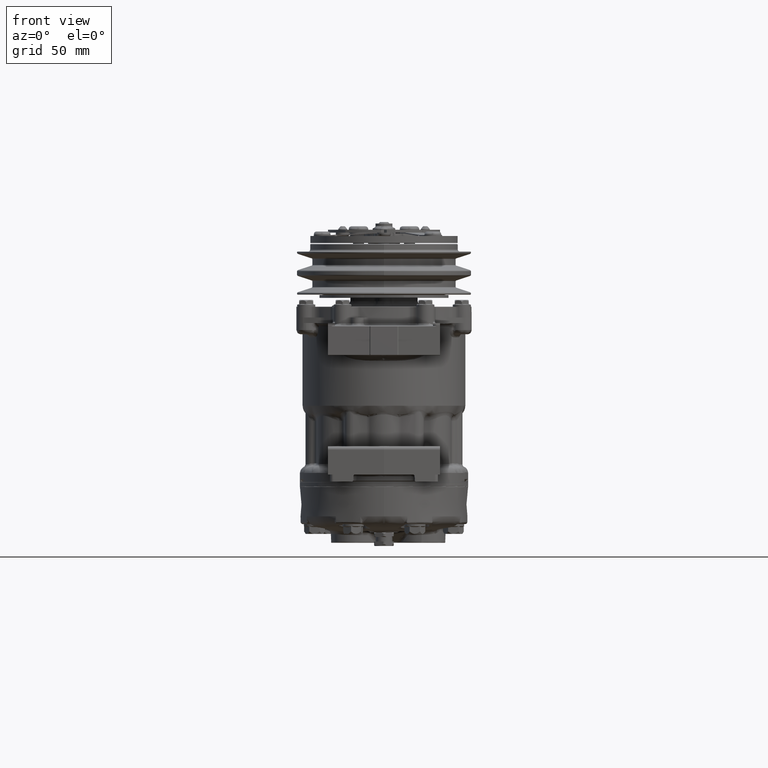
[diagram: clean part render]
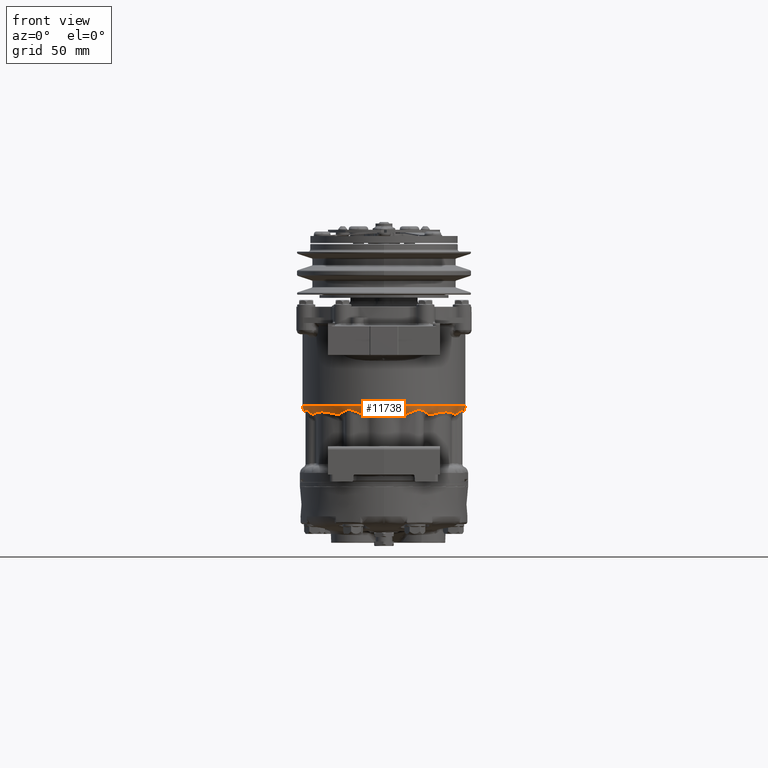
[diagram: same view with one face highlighted and labeled with its STEP entity id]
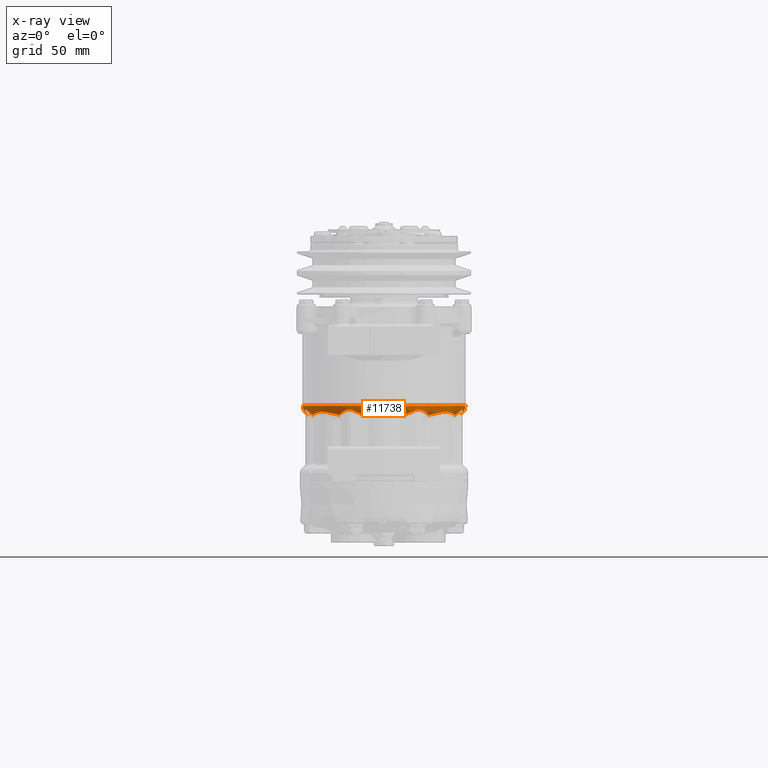
[diagram: x-ray of the same camera — body ghosted, the highlighted face saturated]
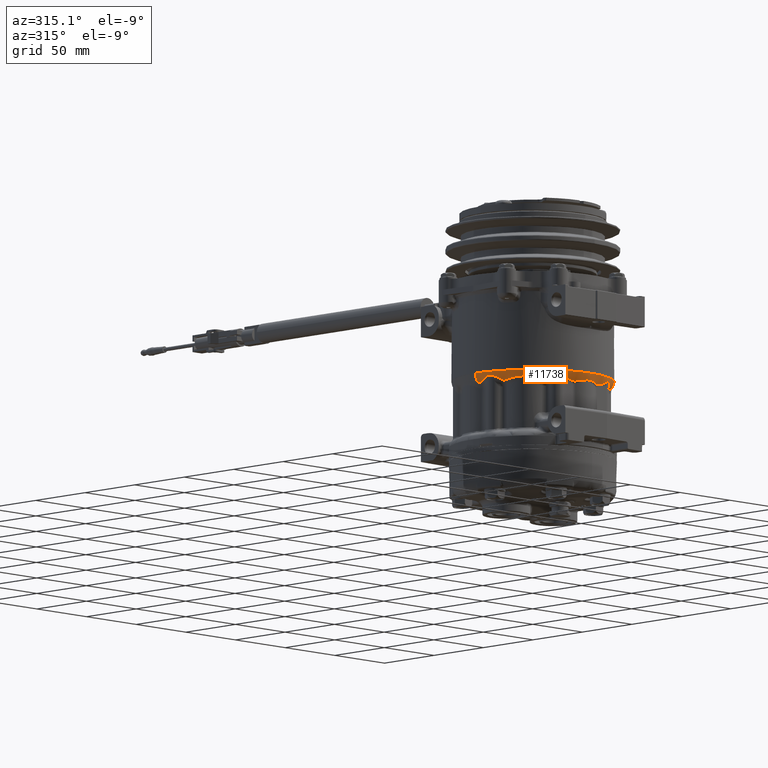
[diagram: same view with one face highlighted and labeled with its STEP entity id]
A machine part, front view. The second image highlights one B-rep face of the part: STEP entity #11738.
The next image is the same camera in x-ray: the body ghosted, the highlighted face saturated — about 0% of this face is hidden behind the body in this view.
A second angle (auxiliary view) of the same face is appended — the face is thin or edge-on in the first view.
In plain terms, the highlighted face is a freeform B-spline surface patch.
Its self-contained STEP definition (entity closure, byte-faithful):
#2284 = CARTESIAN_POINT ( 'NONE',  ( -54.28339097298989200, -0.0001150193945226307700, -9.587478286473057700 ) ) ;
#2285 = CARTESIAN_POINT ( 'NONE',  ( -56.03406201889804800, -0.0001151383021147367500, -8.038017556103042700 ) ) ;
#2286 = CARTESIAN_POINT ( 'NONE',  ( -56.98128687608920000, -0.0001151383021147367300, -5.912628057765234100 ) ) ;
#2287 = CARTESIAN_POINT ( 'NONE',  ( -56.98128688112369400, -0.0001151105602087421100, -3.596842083006215800 ) ) ;
#2288 =( BOUNDED_CURVE ( )  B_SPLINE_CURVE ( 3, ( #2287, #2286, #2285, #2284 ),
 .UNSPECIFIED., .F., .T. ) 
 B_SPLINE_CURVE_WITH_KNOTS ( ( 4, 4 ),
 ( 0.0000000000000000000, 1.000000000000000000 ),
 .UNSPECIFIED. ) 
 CURVE ( )  GEOMETRIC_REPRESENTATION_ITEM ( )  RATIONAL_B_SPLINE_CURVE ( ( 1.000000000000000000, 0.9331068306218579500, 0.9242890298648595000, 0.9735465977290037600 ) ) 
 REPRESENTATION_ITEM ( '' )  );
#2345 = CARTESIAN_POINT ( 'NONE',  ( -56.98128688112369400, -0.0001151105602087421100, -3.596842083006215800 ) ) ;
#2702 = CARTESIAN_POINT ( 'NONE',  ( 59.01871312894530100, -0.0001151385370240509700, -3.596841984690874100 ) ) ;
#2769 =( BOUNDED_CURVE ( )  B_SPLINE_CURVE ( 3, ( #2804, #2803, #2802, #2801 ),
 .UNSPECIFIED., .F., .F. ) 
 B_SPLINE_CURVE_WITH_KNOTS ( ( 4, 4 ),
 ( 0.0000000000000000000, 1.000000000000000000 ),
 .UNSPECIFIED. ) 
 CURVE ( )  GEOMETRIC_REPRESENTATION_ITEM ( )  RATIONAL_B_SPLINE_CURVE ( ( 0.9735465991395939600, 0.9242890296712321700, 0.9331068299499336600, 0.9999999999756997700 ) ) 
 REPRESENTATION_ITEM ( '' )  );
#2792 = CARTESIAN_POINT ( 'NONE',  ( 55.53550902791082700, -0.0001151383021147367500, -10.19976215368187600 ) ) ;
#2797 =( BOUNDED_SURFACE ( )  B_SPLINE_SURFACE ( 3, 3, ( 
 ( #2792, #2830, #2829, #2828 ),
 ( #2827, #2826, #2825, #2824 ),
 ( #2823, #2822, #2821, #2820 ),
 ( #2819, #2818, #2817, #2816 ) ),
 .UNSPECIFIED., .F., .F., .T. ) 
 B_SPLINE_SURFACE_WITH_KNOTS ( ( 4, 4 ),
 ( 4, 4 ),
 ( 0.0002379373980000020600, 1.000000000000000000 ),
 ( 0.0000000000000000000, 1.000000000000000000 ),
 .UNSPECIFIED. ) 
 GEOMETRIC_REPRESENTATION_ITEM ( )  RATIONAL_B_SPLINE_SURFACE ( (
 ( 0.9999450139925221100, 0.3333150046641740700, 0.3333150046641740700, 0.9999450139925221100),
 ( 0.9229501945082390100, 0.3076500648360800400, 0.3076500648360800400, 0.9229501945082390100),
 ( 0.9229685231773979700, 0.3076561743924671200, 0.3076561743924671200, 0.9229685231773979700),
 ( 1.000000000000000000, 0.3333333333333330400, 0.3333333333333330400, 1.000000000000000000) ) ) 
 REPRESENTATION_ITEM ( '' )  SURFACE ( )  );
#2799 = FACE_OUTER_BOUND ( 'NONE', #11733, .T. ) ;
#2801 = CARTESIAN_POINT ( 'NONE',  ( 59.01871312894530100, -0.0001151385370240509700, -3.596841984690874100 ) ) ;
#2802 = CARTESIAN_POINT ( 'NONE',  ( 59.01871312391082100, -0.0001151397115302114300, -5.912628081853018400 ) ) ;
#2803 = CARTESIAN_POINT ( 'NONE',  ( 58.07148824815713100, -0.0001151396885123941900, -8.038017597753702500 ) ) ;
#2804 = CARTESIAN_POINT ( 'NONE',  ( 56.32081658608140600, -0.0001151392244602700300, -9.587477666880804600 ) ) ;
#2816 = CARTESIAN_POINT ( 'NONE',  ( -56.98128687608920000, -0.0001151383021147367500, -3.596841984681874200 ) ) ;
#2817 = CARTESIAN_POINT ( 'NONE',  ( -56.98128687608920700, -116.0001151383021500, -3.596841984681877300 ) ) ;
#2818 = CARTESIAN_POINT ( 'NONE',  ( 59.01871312391080700, -116.0001151383021500, -3.596841984681877300 ) ) ;
#2819 = CARTESIAN_POINT ( 'NONE',  ( 59.01871312391080700, -0.0001151383021147367500, -3.596841984681874200 ) ) ;
#2820 = CARTESIAN_POINT ( 'NONE',  ( -56.98128687608920700, -0.0001151383021147367500, -6.292900830681882800 ) ) ;
#2821 = CARTESIAN_POINT ( 'NONE',  ( -56.98128687608920000, -116.0001151383021500, -6.292900830681881900 ) ) ;
#2822 = CARTESIAN_POINT ( 'NONE',  ( 59.01871312391080700, -116.0001151383021500, -6.292900830681881900 ) ) ;
#2823 = CARTESIAN_POINT ( 'NONE',  ( 59.01871312391082100, -0.0001151383021147367500, -6.292900830681882800 ) ) ;
#2824 = CARTESIAN_POINT ( 'NONE',  ( -55.72335963808920700, -0.0001151383021147367500, -8.677538480681876700 ) ) ;
#2825 = CARTESIAN_POINT ( 'NONE',  ( -55.72335963808921400, -113.4842606613021300, -8.677538480681876700 ) ) ;
#2826 = CARTESIAN_POINT ( 'NONE',  ( 57.76078588591082100, -113.4842606613021300, -8.677538480681876700 ) ) ;
#2827 = CARTESIAN_POINT ( 'NONE',  ( 57.76078588591081300, -0.0001151383021147367500, -8.677538480681876700 ) ) ;
#2828 = CARTESIAN_POINT ( 'NONE',  ( -53.49808278008922000, -0.0001151383021147367500, -10.19976215368187600 ) ) ;
#2829 = CARTESIAN_POINT ( 'NONE',  ( -53.49808278008920600, -109.0337069463021200, -10.19976215368187200 ) ) ;
#2830 = CARTESIAN_POINT ( 'NONE',  ( 55.53550902791082000, -109.0337069463021200, -10.19976215368187200 ) ) ;
#3178 = CARTESIAN_POINT ( 'NONE',  ( -56.98128688112369400, -0.0001151105602087421100, -3.596842083006215800 ) ) ;
#3179 = CARTESIAN_POINT ( 'NONE',  ( -56.98128687608923600, -116.0001151383022100, -3.596841984681883100 ) ) ;
#3180 = CARTESIAN_POINT ( 'NONE',  ( 59.01871312391080700, -116.0001151383022100, -3.596841984681883100 ) ) ;
#3181 = CARTESIAN_POINT ( 'NONE',  ( 59.01871312894530100, -0.0001151385370240509700, -3.596841984690874100 ) ) ;
#3182 =( BOUNDED_CURVE ( )  B_SPLINE_CURVE ( 3, ( #3181, #3180, #3179, #3178 ),
 .UNSPECIFIED., .F., .T. ) 
 B_SPLINE_CURVE_WITH_KNOTS ( ( 4, 4 ),
 ( 0.0000000000000000000, 1.000000000000000000 ),
 .UNSPECIFIED. ) 
 CURVE ( )  GEOMETRIC_REPRESENTATION_ITEM ( )  RATIONAL_B_SPLINE_CURVE ( ( 1.000000000000000000, 0.3333333333333328700, 0.3333333333333328700, 1.000000000000000000 ) ) 
 REPRESENTATION_ITEM ( '' )  );
#4750 = VERTEX_POINT ( 'NONE', #57488 ) ;
#10617 = VERTEX_POINT ( 'NONE', #63444 ) ;
#11511 = EDGE_CURVE ( 'NONE', #11536, #33569, #2288, .T. ) ;
#11536 = VERTEX_POINT ( 'NONE', #2345 ) ;
#11686 = ORIENTED_EDGE ( 'NONE', *, *, #30388, .T. ) ;
#11702 = VERTEX_POINT ( 'NONE', #2702 ) ;
#11725 = EDGE_CURVE ( 'NONE', #33500, #11702, #2769, .T. ) ;
#11733 = EDGE_LOOP ( 'NONE', ( #11686, #11760, #11788, #11803, #11805, #11801, #11771, #11795, #11816, #11850, #11896, #11875, #11954, #11956, #11885, #11862 ) ) ;
#11738 = ADVANCED_FACE ( 'NONE', ( #2799 ), #2797, .T. ) ;
#11760 = ORIENTED_EDGE ( 'NONE', *, *, #33925, .T. ) ;
#11771 = ORIENTED_EDGE ( 'NONE', *, *, #33428, .T. ) ;
#11788 = ORIENTED_EDGE ( 'NONE', *, *, #30290, .T. ) ;
#11795 = ORIENTED_EDGE ( 'NONE', *, *, #33474, .T. ) ;
#11801 = ORIENTED_EDGE ( 'NONE', *, *, #33333, .T. ) ;
#11803 = ORIENTED_EDGE ( 'NONE', *, *, #33255, .T. ) ;
#11805 = ORIENTED_EDGE ( 'NONE', *, *, #33381, .T. ) ;
#11816 = ORIENTED_EDGE ( 'NONE', *, *, #11725, .T. ) ;
#11850 = ORIENTED_EDGE ( 'NONE', *, *, #11851, .T. ) ;
#11851 = EDGE_CURVE ( 'NONE', #11702, #11536, #3182, .T. ) ;
#11862 = ORIENTED_EDGE ( 'NONE', *, *, #33921, .T. ) ;
#11875 = ORIENTED_EDGE ( 'NONE', *, *, #33655, .T. ) ;
#11885 = ORIENTED_EDGE ( 'NONE', *, *, #33830, .T. ) ;
#11896 = ORIENTED_EDGE ( 'NONE', *, *, #11511, .T. ) ;
#11954 = ORIENTED_EDGE ( 'NONE', *, *, #33602, .T. ) ;
#11956 = ORIENTED_EDGE ( 'NONE', *, *, #33855, .T. ) ;
#29538 = VERTEX_POINT ( 'NONE', #79805 ) ;
#29540 = VERTEX_POINT ( 'NONE', #79804 ) ;
#29969 = VERTEX_POINT ( 'NONE', #80483 ) ;
#30056 = VERTEX_POINT ( 'NONE', #80731 ) ;
#30109 = VERTEX_POINT ( 'NONE', #80933 ) ;
#30219 = VERTEX_POINT ( 'NONE', #81261 ) ;
#30290 = EDGE_CURVE ( 'NONE', #29538, #29540, #81332, .T. ) ;
#30388 = EDGE_CURVE ( 'NONE', #30219, #30407, #81566, .T. ) ;
#30407 = VERTEX_POINT ( 'NONE', #81592 ) ;
#33255 = EDGE_CURVE ( 'NONE', #29540, #4750, #92777, .T. ) ;
#33333 = EDGE_CURVE ( 'NONE', #48717, #49671, #93188, .T. ) ;
#33381 = EDGE_CURVE ( 'NONE', #4750, #48717, #93579, .T. ) ;
#33428 = EDGE_CURVE ( 'NONE', #49671, #50198, #93878, .T. ) ;
#33474 = EDGE_CURVE ( 'NONE', #50198, #33500, #94047, .T. ) ;
#33500 = VERTEX_POINT ( 'NONE', #94242 ) ;
#33569 = VERTEX_POINT ( 'NONE', #94707 ) ;
#33602 = EDGE_CURVE ( 'NONE', #10617, #29969, #95024, .T. ) ;
#33655 = EDGE_CURVE ( 'NONE', #33569, #10617, #96146, .T. ) ;
#33830 = EDGE_CURVE ( 'NONE', #30109, #30056, #97373, .T. ) ;
#33855 = EDGE_CURVE ( 'NONE', #29969, #30109, #96430, .T. ) ;
#33921 = EDGE_CURVE ( 'NONE', #30056, #30219, #97977, .T. ) ;
#33925 = EDGE_CURVE ( 'NONE', #30407, #29538, #97964, .T. ) ;
#48717 = VERTEX_POINT ( 'NONE', #142160 ) ;
#49671 = VERTEX_POINT ( 'NONE', #144755 ) ;
#50198 = VERTEX_POINT ( 'NONE', #147444 ) ;
#57488 = CARTESIAN_POINT ( 'NONE',  ( 17.69192483992925300, -53.03790184197604400, -9.313131893236063200 ) ) ;
#63444 = CARTESIAN_POINT ( 'NONE',  ( -53.47420532803278100, -2.743882731936431200, -10.16864610077266400 ) ) ;
#79804 = CARTESIAN_POINT ( 'NONE',  ( 13.07152244585284300, -53.38619950052461900, -10.04894078482257500 ) ) ;
#79805 = CARTESIAN_POINT ( 'NONE',  ( 11.65036856180988400, -53.78666772240453800, -9.976327393451292400 ) ) ;
#80483 = CARTESIAN_POINT ( 'NONE',  ( -49.26785274553874000, -21.17470830300255400, -10.16803736488623700 ) ) ;
#80731 = CARTESIAN_POINT ( 'NONE',  ( -15.65449852858281500, -53.03790213872147800, -9.313131685689777200 ) ) ;
#80933 = CARTESIAN_POINT ( 'NONE',  ( -30.78397666518538500, -44.32475177184855400, -10.17450319884083500 ) ) ;
#81261 = CARTESIAN_POINT ( 'NONE',  ( -11.03409623643610100, -53.38619949788950000, -10.04894078050689500 ) ) ;
#81326 = CARTESIAN_POINT ( 'NONE',  ( 13.07152244585284300, -53.38619950052461900, -10.04894078482257500 ) ) ;
#81327 = CARTESIAN_POINT ( 'NONE',  ( 12.82332300911778900, -53.40323674659130400, -10.07682655861494500 ) ) ;
#81328 = CARTESIAN_POINT ( 'NONE',  ( 12.57917507175912200, -53.44553252147010600, -10.08453333274934700 ) ) ;
#81329 = CARTESIAN_POINT ( 'NONE',  ( 12.09691648424816200, -53.58133969606753800, -10.06054743029432400 ) ) ;
#81330 = CARTESIAN_POINT ( 'NONE',  ( 11.86684948714465200, -53.67285516528876600, -10.02904837183875000 ) ) ;
#81331 = CARTESIAN_POINT ( 'NONE',  ( 11.65036856180988400, -53.78666772240453800, -9.976327393451292400 ) ) ;
#81332 = B_SPLINE_CURVE_WITH_KNOTS ( 'NONE', 3,
 ( #81331, #81330, #81329, #81328, #81327, #81326 ),
 .UNSPECIFIED., .F., .F.,
 ( 4, 2, 4 ),
 ( 0.0000000000000000000, 0.5000000000000000000, 1.000000000000000000 ),
 .UNSPECIFIED. ) ;
#81560 = CARTESIAN_POINT ( 'NONE',  ( -9.612942307219306300, -53.78666772596349700, -9.976327391802611200 ) ) ;
#81561 = CARTESIAN_POINT ( 'NONE',  ( -9.829034266659562000, -53.67305954569271600, -10.02895373049133100 ) ) ;
#81562 = CARTESIAN_POINT ( 'NONE',  ( -10.05746652488752300, -53.58200491152017300, -10.06037401622628200 ) ) ;
#81563 = CARTESIAN_POINT ( 'NONE',  ( -10.54102976112914700, -53.44564022979595600, -10.08456991801254800 ) ) ;
#81564 = CARTESIAN_POINT ( 'NONE',  ( -10.78544897670425800, -53.40326748556212500, -10.07687686759335000 ) ) ;
#81565 = CARTESIAN_POINT ( 'NONE',  ( -11.03409623643610100, -53.38619949788950000, -10.04894078050689500 ) ) ;
#81566 = B_SPLINE_CURVE_WITH_KNOTS ( 'NONE', 3,
 ( #81565, #81564, #81563, #81562, #81561, #81560 ),
 .UNSPECIFIED., .F., .F.,
 ( 4, 2, 4 ),
 ( 0.0000000000000000000, 0.5000000000000000000, 1.000000000000000000 ),
 .UNSPECIFIED. ) ;
#81592 = CARTESIAN_POINT ( 'NONE',  ( -9.612942307219306300, -53.78666772596349700, -9.976327391802611200 ) ) ;
#92772 = CARTESIAN_POINT ( 'NONE',  ( 17.69192483992925300, -53.03790184197604400, -9.313131893236063200 ) ) ;
#92773 = CARTESIAN_POINT ( 'NONE',  ( 16.24256018124068400, -53.15652032766291100, -9.627909311341147400 ) ) ;
#92774 = CARTESIAN_POINT ( 'NONE',  ( 14.70265657419684200, -53.27428321214696200, -9.865643198673211600 ) ) ;
#92775 = CARTESIAN_POINT ( 'NONE',  ( 13.07152244585284300, -53.38619950052461900, -10.04894078482257500 ) ) ;
#92777 = B_SPLINE_CURVE_WITH_KNOTS ( 'NONE', 3,
 ( #92775, #92774, #92773, #92772 ),
 .UNSPECIFIED., .F., .F.,
 ( 4, 4 ),
 ( 0.0000000000000000000, 1.000000000000000000 ),
 .UNSPECIFIED. ) ;
#93165 = CARTESIAN_POINT ( 'NONE',  ( 40.26340855675427800, -40.38649116143018600, -8.517751842714222500 ) ) ;
#93166 = CARTESIAN_POINT ( 'NONE',  ( 39.68802110544474700, -40.79435310819801000, -8.641114526625768700 ) ) ;
#93167 = CARTESIAN_POINT ( 'NONE',  ( 39.67362631434822600, -40.80453175594038100, -8.644205184595579200 ) ) ;
#93168 = CARTESIAN_POINT ( 'NONE',  ( 39.64173257627872700, -40.82703909915617400, -8.651060755242882600 ) ) ;
#93169 = CARTESIAN_POINT ( 'NONE',  ( 39.59382898747866600, -40.86076927034537200, -8.661370702847429800 ) ) ;
#93170 = CARTESIAN_POINT ( 'NONE',  ( 39.48161269772541000, -40.93925528545953100, -8.685612167127201700 ) ) ;
#93171 = CARTESIAN_POINT ( 'NONE',  ( 39.25541217843749600, -41.09534188406283300, -8.734824847304338400 ) ) ;
#93172 = CARTESIAN_POINT ( 'NONE',  ( 39.05848537809702500, -41.22756233463908200, -8.778223606241937200 ) ) ;
#93173 = CARTESIAN_POINT ( 'NONE',  ( 38.66055457522572400, -41.48977637432504700, -8.866544603864356900 ) ) ;
#93174 = CARTESIAN_POINT ( 'NONE',  ( 38.38982949735437700, -41.66161708599545200, -8.927459030335370500 ) ) ;
#93175 = CARTESIAN_POINT ( 'NONE',  ( 37.56120863242682600, -42.16712030003320400, -9.115428495214118200 ) ) ;
#93176 = CARTESIAN_POINT ( 'NONE',  ( 36.98683213151448300, -42.49076036756388000, -9.247749629995881900 ) ) ;
#93177 = CARTESIAN_POINT ( 'NONE',  ( 36.35322806112600300, -42.81723898378414400, -9.392802563587224500 ) ) ;
#93178 = CARTESIAN_POINT ( 'NONE',  ( 36.31867070888203100, -42.83494546827792200, -9.400710583071513000 ) ) ;
#93179 = CARTESIAN_POINT ( 'NONE',  ( 36.24671251158542900, -42.87162323669709700, -9.417170015940794100 ) ) ;
#93180 = CARTESIAN_POINT ( 'NONE',  ( 36.13864547139897400, -42.92640618653138100, -9.441877502721421700 ) ) ;
#93181 = CARTESIAN_POINT ( 'NONE',  ( 35.88558662780904700, -43.05258959390234700, -9.499645058935074700 ) ) ;
#93182 = CARTESIAN_POINT ( 'NONE',  ( 35.66715225284976000, -43.15790378234030600, -9.549320132166222700 ) ) ;
#93183 = CARTESIAN_POINT ( 'NONE',  ( 35.22830556744893500, -43.36467687038203400, -9.648773432771445600 ) ) ;
#93184 = CARTESIAN_POINT ( 'NONE',  ( 34.93310236506997800, -43.49738350494950400, -9.715214195333763000 ) ) ;
#93185 = CARTESIAN_POINT ( 'NONE',  ( 34.04009237165012500, -43.87961689929177600, -9.914030514438106700 ) ) ;
#93186 = CARTESIAN_POINT ( 'NONE',  ( 33.43486123417750400, -44.11322190665106300, -10.04591036575412100 ) ) ;
#93187 = CARTESIAN_POINT ( 'NONE',  ( 32.82140220081530700, -44.32475183727074600, -10.17450344884916000 ) ) ;
#93188 = B_SPLINE_CURVE_WITH_KNOTS ( 'NONE', 3,
 ( #93187, #93186, #93185, #93184, #93183, #93182, #93181, #93180, #93179, #93178, #93177, #93176, #93175, #93174, #93173, #93172, #93171, #93170, #93169, #93168, #93167, #93166, #93165, #93245, #93244, #93243, #93242, #93241, #93240, #93239, #93238, #93237, #93236, #93235, #93234, #93233, #93232, #93231, #93230, #93229, #93228, #93227, #93226, #93225, #93224, #93223, #93222, #93221, #93220, #93219, #93218, #93217, #93215, #93214, #93213, #93212, #93211, #93210, #93209, #93208, #93207, #93206, #93205, #93204, #93203, #93202, #93201, #93200, #93199, #93198, #93197, #93196, #93195 ),
 .UNSPECIFIED., .F., .F.,
 ( 4, 2, 2, 1, 1, 2, 2, 2, 2, 1, 1, 1, 2, 2, 2, 2, 1, 1, 1, 2, 2, 2, 2, 2, 2, 1, 1, 1, 2, 2, 2, 2, 1, 1, 1, 1, 2, 2, 2, 2, 1, 1, 2, 2, 4 ),
 ( 0.0000000000000000000, 0.06249999999996799800, 0.09374999999995216300, 0.1093749999999442400, 0.1171874999999403000, 0.1210937499999383100, 0.1249999999999363300, 0.1874999999999065200, 0.2187499999998915900, 0.2343749999998839500, 0.2421874999998804300, 0.2460937499998791500, 0.2480468749998784300, 0.2499999999998777100, 0.3124999999998602800, 0.3437499999998514000, 0.3593749999998471800, 0.3671874999998445700, 0.3710937499998430700, 0.3730468749998425700, 0.3749999999998420700, 0.4374999999998395700, 0.4999999999998371300, 0.5624999999998346900, 0.5937499999998334700, 0.6093749999998328000, 0.6171874999998324700, 0.6210937499998322500, 0.6230468749998321300, 0.6249999999998319100, 0.6874999999998481200, 0.7187499999998561200, 0.7343749999998601100, 0.7421874999998621100, 0.7460937499998628900, 0.7480468749998634400, 0.7490234374998637800, 0.7499999999998640000, 0.8124999999998965300, 0.8437499999999128500, 0.8593749999999210600, 0.8671874999999253900, 0.8710937499999277200, 0.8749999999999299400, 1.000000000000000000 ),
 .UNSPECIFIED. ) ;
#93195 = CARTESIAN_POINT ( 'NONE',  ( 51.30527900286408300, -21.17470831161136100, -10.16803735658965200 ) ) ;
#93196 = CARTESIAN_POINT ( 'NONE',  ( 51.16443066675353200, -22.46331530234531800, -9.910934115246343300 ) ) ;
#93197 = CARTESIAN_POINT ( 'NONE',  ( 50.93011137025020200, -23.73618562077000500, -9.641728216977657700 ) ) ;
#93198 = CARTESIAN_POINT ( 'NONE',  ( 50.60029317501676600, -25.01705895128573000, -9.372623187512138200 ) ) ;
#93199 = CARTESIAN_POINT ( 'NONE',  ( 50.58913310543979900, -25.06000784295052600, -9.363601836937538900 ) ) ;
#93200 = CARTESIAN_POINT ( 'NONE',  ( 50.56773731534848100, -25.14153795186588900, -9.346482128758360400 ) ) ;
#93201 = CARTESIAN_POINT ( 'NONE',  ( 50.53540334649663600, -25.26359944784871600, -9.320859704538250400 ) ) ;
#93202 = CARTESIAN_POINT ( 'NONE',  ( 50.45829537112947300, -25.54676267809998800, -9.261490659123451200 ) ) ;
#93203 = CARTESIAN_POINT ( 'NONE',  ( 50.38942247048830600, -25.78661282894031000, -9.211373504248838300 ) ) ;
#93204 = CARTESIAN_POINT ( 'NONE',  ( 50.24815710446827700, -26.26240448382952400, -9.112309692312146900 ) ) ;
#93205 = CARTESIAN_POINT ( 'NONE',  ( 50.14928670508117400, -26.57438489242639800, -9.047830566393445300 ) ) ;
#93206 = CARTESIAN_POINT ( 'NONE',  ( 49.84013384881923500, -27.49402825742177100, -8.860128078008950000 ) ) ;
#93207 = CARTESIAN_POINT ( 'NONE',  ( 49.61731375067000700, -28.08536014152665700, -8.742681409044385200 ) ) ;
#93208 = CARTESIAN_POINT ( 'NONE',  ( 49.37825894166690700, -28.66250303570177800, -8.633512372939176100 ) ) ;
#93209 = CARTESIAN_POINT ( 'NONE',  ( 49.37371997928979500, -28.67344498256351300, -8.631444388070486100 ) ) ;
#93210 = CARTESIAN_POINT ( 'NONE',  ( 49.36549055044689300, -28.69324779155596200, -8.627705544185662500 ) ) ;
#93211 = CARTESIAN_POINT ( 'NONE',  ( 49.35313372638722700, -28.72293374037024400, -8.622105952895996200 ) ) ;
#93212 = CARTESIAN_POINT ( 'NONE',  ( 49.32421277818216500, -28.79207298945596000, -8.609101169428353000 ) ) ;
#93213 = CARTESIAN_POINT ( 'NONE',  ( 49.26602069833393900, -28.92983874173348400, -8.583336967863926900 ) ) ;
#93214 = CARTESIAN_POINT ( 'NONE',  ( 49.14826176173600200, -29.20331231930872600, -8.532802977628549000 ) ) ;
#93215 = CARTESIAN_POINT ( 'NONE',  ( 49.04505766101176100, -29.43416715248561400, -8.491236404206036400 ) ) ;
#93217 = CARTESIAN_POINT ( 'NONE',  ( 48.83585979041438900, -29.89108607358693700, -8.410541152861542400 ) ) ;
#93218 = CARTESIAN_POINT ( 'NONE',  ( 48.69267662920894000, -30.18930927338746900, -8.359997993581581400 ) ) ;
#93219 = CARTESIAN_POINT ( 'NONE',  ( 48.25379633877627600, -31.06443391192243200, -8.218865394526849500 ) ) ;
#93220 = CARTESIAN_POINT ( 'NONE',  ( 47.94880545754204300, -31.62177357709045800, -8.138815279899045400 ) ) ;
#93221 = CARTESIAN_POINT ( 'NONE',  ( 47.62612058928628000, -32.16888861229955400, -8.072184111259485200 ) ) ;
#93222 = CARTESIAN_POINT ( 'NONE',  ( 47.61447897677623300, -32.18857977709426900, -8.069800295475589600 ) ) ;
#93223 = CARTESIAN_POINT ( 'NONE',  ( 47.59300772601416400, -32.22479559739349500, -8.065446973501273900 ) ) ;
#93224 = CARTESIAN_POINT ( 'NONE',  ( 47.56074964325551900, -32.27906471215332100, -8.058966649383210200 ) ) ;
#93225 = CARTESIAN_POINT ( 'NONE',  ( 47.48512447953915200, -32.40530975509840100, -8.044194310433503900 ) ) ;
#93226 = CARTESIAN_POINT ( 'NONE',  ( 47.33246591715294500, -32.65626361826785000, -8.016049549475047400 ) ) ;
#93227 = CARTESIAN_POINT ( 'NONE',  ( 47.19925931754894300, -32.86871748116830400, -7.994346050073285200 ) ) ;
#93228 = CARTESIAN_POINT ( 'NONE',  ( 46.92985162694876800, -33.29004968196265000, -7.954214148953036900 ) ) ;
#93229 = CARTESIAN_POINT ( 'NONE',  ( 46.74625637831908900, -33.56617098348254300, -7.931828896090750400 ) ) ;
#93230 = CARTESIAN_POINT ( 'NONE',  ( 46.18458929938296400, -34.37987753266336500, -7.878065807912618900 ) ) ;
#93231 = CARTESIAN_POINT ( 'NONE',  ( 45.79567686818349900, -34.90282186643324300, -7.860117324095695900 ) ) ;
#93232 = CARTESIAN_POINT ( 'NONE',  ( 44.99374905030473600, -35.90746515869381700, -7.860590664069515100 ) ) ;
#93233 = CARTESIAN_POINT ( 'NONE',  ( 44.57228705603122900, -36.39996242272090400, -7.878879813039301200 ) ) ;
#93234 = CARTESIAN_POINT ( 'NONE',  ( 43.68398950036995400, -37.36710028848111200, -7.950975566974296500 ) ) ;
#93235 = CARTESIAN_POINT ( 'NONE',  ( 43.21789422461113600, -37.84080189052998100, -8.004788050308453900 ) ) ;
#93236 = CARTESIAN_POINT ( 'NONE',  ( 42.71426950997563700, -38.31647085248014400, -8.077647175164658600 ) ) ;
#93237 = CARTESIAN_POINT ( 'NONE',  ( 42.70127414532120000, -38.32871699423886000, -8.079538359819567400 ) ) ;
#93238 = CARTESIAN_POINT ( 'NONE',  ( 42.67294317327549900, -38.35536365456776100, -8.083681518741871100 ) ) ;
#93239 = CARTESIAN_POINT ( 'NONE',  ( 42.63037242565502500, -38.39531986873036100, -8.089940346125647600 ) ) ;
#93240 = CARTESIAN_POINT ( 'NONE',  ( 42.53051987274636800, -38.48845283151495500, -8.104852200671144800 ) ) ;
#93241 = CARTESIAN_POINT ( 'NONE',  ( 42.32872524745958700, -38.67431161107476400, -8.135901848990029000 ) ) ;
#93242 = CARTESIAN_POINT ( 'NONE',  ( 42.15215466948568900, -38.83287143138547700, -8.164597193736204500 ) ) ;
#93243 = CARTESIAN_POINT ( 'NONE',  ( 41.79414960788814400, -39.14885439157512100, -8.224702195924045600 ) ) ;
#93244 = CARTESIAN_POINT ( 'NONE',  ( 41.54899424929183000, -39.35799664510437200, -8.268394094559726100 ) ) ;
#93245 = CARTESIAN_POINT ( 'NONE',  ( 40.79359714005182300, -39.97967306948322600, -8.409751644850411300 ) ) ;
#93556 = CARTESIAN_POINT ( 'NONE',  ( 22.72470302590459600, -52.94665461300122900, -7.044998414054597400 ) ) ;
#93557 = CARTESIAN_POINT ( 'NONE',  ( 22.27936994530372100, -53.02700249162968000, -7.224436886013009500 ) ) ;
#93558 = CARTESIAN_POINT ( 'NONE',  ( 22.27491654974392800, -53.02780242906104700, -7.226233451167748200 ) ) ;
#93559 = CARTESIAN_POINT ( 'NONE',  ( 22.26360352778345200, -53.02982931025079000, -7.230800419605484000 ) ) ;
#93560 = CARTESIAN_POINT ( 'NONE',  ( 22.24662564513560500, -53.03286044256771700, -7.237660676544170000 ) ) ;
#93561 = CARTESIAN_POINT ( 'NONE',  ( 22.20695210690746500, -53.03986850579095600, -7.253736422583860300 ) ) ;
#93562 = CARTESIAN_POINT ( 'NONE',  ( 22.12737087210429400, -53.05362429033701900, -7.286160619363079700 ) ) ;
#93563 = CARTESIAN_POINT ( 'NONE',  ( 21.96726986467570300, -53.08007819495328100, -7.352089900888539200 ) ) ;
#93564 = CARTESIAN_POINT ( 'NONE',  ( 21.82842508918571400, -53.10088358520027900, -7.410418925625577000 ) ) ;
#93565 = CARTESIAN_POINT ( 'NONE',  ( 21.54856670201832400, -53.13984866407931000, -7.529399267967106900 ) ) ;
#93566 = CARTESIAN_POINT ( 'NONE',  ( 21.35910159452440700, -53.16229839701090800, -7.611819754260705100 ) ) ;
#93567 = CARTESIAN_POINT ( 'NONE',  ( 20.78194096423408900, -53.21780913862421900, -7.867432605643660500 ) ) ;
#93568 = CARTESIAN_POINT ( 'NONE',  ( 20.38545488530350600, -53.23902224267759200, -8.049046328248328700 ) ) ;
#93569 = CARTESIAN_POINT ( 'NONE',  ( 19.92625034350581000, -53.24132608985114200, -8.262235190620206300 ) ) ;
#93570 = CARTESIAN_POINT ( 'NONE',  ( 19.87880553183164900, -53.24128348886658600, -8.284297265048401500 ) ) ;
#93571 = CARTESIAN_POINT ( 'NONE',  ( 19.78063176160281600, -53.24065326089006300, -8.330010707249357400 ) ) ;
#93572 = CARTESIAN_POINT ( 'NONE',  ( 19.63366623038039200, -53.23886423102974400, -8.398540743955299700 ) ) ;
#93573 = CARTESIAN_POINT ( 'NONE',  ( 19.48759829035063300, -53.23454348271340600, -8.466915723505700000 ) ) ;
#93574 = CARTESIAN_POINT ( 'NONE',  ( 19.19669229616790000, -53.22252878806007500, -8.603364248916998100 ) ) ;
#93575 = CARTESIAN_POINT ( 'NONE',  ( 19.00439465527467300, -53.21001975035260800, -8.693928642244319600 ) ) ;
#93576 = CARTESIAN_POINT ( 'NONE',  ( 18.43269175034455600, -53.15907114483702100, -8.963635098499194600 ) ) ;
#93577 = CARTESIAN_POINT ( 'NONE',  ( 18.05847487647674400, -53.10718033386734000, -9.140794958091875700 ) ) ;
#93578 = CARTESIAN_POINT ( 'NONE',  ( 17.69192483992925300, -53.03790184197604400, -9.313131893236063200 ) ) ;
#93579 = B_SPLINE_CURVE_WITH_KNOTS ( 'NONE', 3,
 ( #93578, #93577, #93576, #93575, #93574, #93573, #93572, #93571, #93570, #93569, #93568, #93567, #93566, #93565, #93564, #93563, #93562, #93561, #93560, #93559, #93558, #93557, #93556, #93645, #93644, #93643, #93642, #93641, #93640, #93639, #93638, #93637, #93636, #93635, #93634, #93633, #93632, #93631, #93630, #93629, #93628, #93627, #93626, #93625, #93624, #93623, #93622, #93621, #93620, #93619, #93618, #93617, #93616, #93615, #93614, #93613, #93612, #93611, #93610, #93609, #93608, #93607, #93606, #93605, #93604, #93603, #93602, #93601, #93600, #93599, #93598, #93597, #93596, #93677, #93676, #93675, #93674, #93673, #93672, #93671, #93670, #93669, #93668, #93667, #93666, #93665, #93664, #93663 ),
 .UNSPECIFIED., .F., .F.,
 ( 4, 2, 2, 1, 2, 2, 2, 2, 1, 1, 1, 1, 2, 2, 2, 2, 1, 1, 1, 2, 2, 2, 2, 2, 2, 1, 1, 1, 2, 2, 2, 2, 2, 1, 2, 2, 2, 2, 1, 1, 1, 2, 1, 1, 2, 2, 2, 2, 1, 1, 1, 2, 2, 4 ),
 ( 0.0000000000000000000, 0.06249999999999328300, 0.09374999999998978600, 0.1093749999999880900, 0.1171874999999874800, 0.1249999999999868700, 0.1874999999999839900, 0.2187499999999823500, 0.2343749999999816300, 0.2421874999999810700, 0.2460937499999810200, 0.2480468749999809000, 0.2490234374999807700, 0.2499999999999806300, 0.3124999999999723600, 0.3437499999999683600, 0.3593749999999661400, 0.3671874999999651900, 0.3710937499999644700, 0.3730468749999640800, 0.3749999999999637000, 0.4062499999999609200, 0.4218749999999590900, 0.4374999999999573100, 0.4687499999999541500, 0.4843749999999525900, 0.4921874999999515900, 0.4960937499999513200, 0.4980468749999511500, 0.4999999999999510400, 0.5624999999999509300, 0.5703124999999506000, 0.5742187499999503700, 0.5781249999999501500, 0.5937499999999488200, 0.6249999999999467100, 0.6406249999999454900, 0.6445312499999456000, 0.6484374999999457100, 0.6562499999999463800, 0.6874999999999513700, 0.7187499999999564800, 0.7343749999999584800, 0.7421874999999595900, 0.7460937499999602500, 0.7499999999999609200, 0.8124999999999713600, 0.8437499999999763500, 0.8593749999999787900, 0.8671874999999801300, 0.8710937499999804600, 0.8730468749999807900, 0.8749999999999811300, 1.000000000000000000 ),
 .UNSPECIFIED. ) ;
#93596 = CARTESIAN_POINT ( 'NONE',  ( 30.54763645959517100, -48.34134120974626800, -8.049218570497235000 ) ) ;
#93597 = CARTESIAN_POINT ( 'NONE',  ( 30.51448587097610600, -48.37974018100914700, -8.025979284521904200 ) ) ;
#93598 = CARTESIAN_POINT ( 'NONE',  ( 30.46469248059736800, -48.43708001808249700, -7.991236678997305300 ) ) ;
#93599 = CARTESIAN_POINT ( 'NONE',  ( 30.34805151611778800, -48.56907382656032000, -7.911003725074226400 ) ) ;
#93600 = CARTESIAN_POINT ( 'NONE',  ( 30.24734648509733100, -48.67916604568526400, -7.843724276499930400 ) ) ;
#93601 = CARTESIAN_POINT ( 'NONE',  ( 30.04511213458256700, -48.89539765053226000, -7.711310668239498500 ) ) ;
#93602 = CARTESIAN_POINT ( 'NONE',  ( 29.77327088142262600, -49.17316437268085100, -7.540488675737043100 ) ) ;
#93603 = CARTESIAN_POINT ( 'NONE',  ( 29.46419023443339200, -49.46327701850101000, -7.362835393348080800 ) ) ;
#93604 = CARTESIAN_POINT ( 'NONE',  ( 29.27466507087540700, -49.63254542387719700, -7.260322747308024700 ) ) ;
#93605 = CARTESIAN_POINT ( 'NONE',  ( 29.22293511464350900, -49.67806367680918800, -7.232868119215612300 ) ) ;
#93606 = CARTESIAN_POINT ( 'NONE',  ( 29.18844061214185700, -49.70826682735381000, -7.214677920614551700 ) ) ;
#93607 = CARTESIAN_POINT ( 'NONE',  ( 29.16931380301786400, -49.72493657481748400, -7.204652215887644900 ) ) ;
#93608 = CARTESIAN_POINT ( 'NONE',  ( 29.07003232186898600, -49.81093536154057900, -7.153040817459375600 ) ) ;
#93609 = CARTESIAN_POINT ( 'NONE',  ( 28.99083702966836600, -49.87796333135938200, -7.113146052058095100 ) ) ;
#93610 = CARTESIAN_POINT ( 'NONE',  ( 28.75415400764828900, -50.07393685376929000, -6.997783519697441600 ) ) ;
#93611 = CARTESIAN_POINT ( 'NONE',  ( 28.59757381317136200, -50.19777531957062400, -6.926643247912636500 ) ) ;
#93612 = CARTESIAN_POINT ( 'NONE',  ( 28.36528605713890300, -50.37407854408181900, -6.829025879976536700 ) ) ;
#93613 = CARTESIAN_POINT ( 'NONE',  ( 28.26903606440519200, -50.44556757542008500, -6.790244489146385100 ) ) ;
#93614 = CARTESIAN_POINT ( 'NONE',  ( 28.17354604261730300, -50.51468415724324500, -6.753873405305046000 ) ) ;
#93615 = CARTESIAN_POINT ( 'NONE',  ( 28.13541244544812900, -50.54214266560356400, -6.739518512588350800 ) ) ;
#93616 = CARTESIAN_POINT ( 'NONE',  ( 28.11682441686372200, -50.55546618764837800, -6.732593472381556600 ) ) ;
#93617 = CARTESIAN_POINT ( 'NONE',  ( 28.05049918927376100, -50.60270663895538900, -6.708248620497586000 ) ) ;
#93618 = CARTESIAN_POINT ( 'NONE',  ( 28.00634554523887200, -50.63377396355151900, -6.692505854352409900 ) ) ;
#93619 = CARTESIAN_POINT ( 'NONE',  ( 27.60960956418756500, -50.90962407970092600, -6.555242858089320300 ) ) ;
#93620 = CARTESIAN_POINT ( 'NONE',  ( 27.26169407685066700, -51.12827794781648500, -6.464787298386081500 ) ) ;
#93621 = CARTESIAN_POINT ( 'NONE',  ( 26.91138804643398400, -51.33003788672137800, -6.405401006305747400 ) ) ;
#93622 = CARTESIAN_POINT ( 'NONE',  ( 26.89874626275165400, -51.33729728056425800, -6.403294632870962600 ) ) ;
#93623 = CARTESIAN_POINT ( 'NONE',  ( 26.87547660467722100, -51.35061301060275000, -6.399496823289824800 ) ) ;
#93624 = CARTESIAN_POINT ( 'NONE',  ( 26.84055965471358400, -51.37052907215201000, -6.393908283961025100 ) ) ;
#93625 = CARTESIAN_POINT ( 'NONE',  ( 26.75900113709007800, -51.41659854488728600, -6.381626130243216000 ) ) ;
#93626 = CARTESIAN_POINT ( 'NONE',  ( 26.59555395350651400, -51.50714257374591700, -6.360096968161256500 ) ) ;
#93627 = CARTESIAN_POINT ( 'NONE',  ( 26.45493127284162000, -51.58205096088597900, -6.346859279910390200 ) ) ;
#93628 = CARTESIAN_POINT ( 'NONE',  ( 26.17307689676373200, -51.72832528625137600, -6.327360924678250100 ) ) ;
#93629 = CARTESIAN_POINT ( 'NONE',  ( 25.98436798613472100, -51.82112992861267700, -6.323668499358484000 ) ) ;
#93630 = CARTESIAN_POINT ( 'NONE',  ( 25.70034595159621600, -51.95329568829037500, -6.332107850840857000 ) ) ;
#93631 = CARTESIAN_POINT ( 'NONE',  ( 25.60754174116244600, -51.99526919597801800, -6.337114151182746000 ) ) ;
#93632 = CARTESIAN_POINT ( 'NONE',  ( 25.41699652378277500, -52.07903710164998800, -6.351762861174832700 ) ) ;
#93633 = CARTESIAN_POINT ( 'NONE',  ( 25.32070230870388600, -52.12015824908651500, -6.361362299509298000 ) ) ;
#93634 = CARTESIAN_POINT ( 'NONE',  ( 25.02874784252125900, -52.24111497366212800, -6.396961863435642200 ) ) ;
#93635 = CARTESIAN_POINT ( 'NONE',  ( 24.83001948788431800, -52.31855576749735800, -6.429768138953455100 ) ) ;
#93636 = CARTESIAN_POINT ( 'NONE',  ( 24.61445092940658300, -52.39695261772093500, -6.474140571078836000 ) ) ;
#93637 = CARTESIAN_POINT ( 'NONE',  ( 24.60564960218022900, -52.40013883744416000, -6.475975089978451400 ) ) ;
#93638 = CARTESIAN_POINT ( 'NONE',  ( 24.58410120131597800, -52.40791681111638700, -6.480501977730046500 ) ) ;
#93639 = CARTESIAN_POINT ( 'NONE',  ( 24.55171200320059600, -52.41956383877141700, -6.487374508871480000 ) ) ;
#93640 = CARTESIAN_POINT ( 'NONE',  ( 24.47567046605488300, -52.44659843213601400, -6.503985251157188500 ) ) ;
#93641 = CARTESIAN_POINT ( 'NONE',  ( 24.32171579653911700, -52.50008168499090300, -6.539501356309460600 ) ) ;
#93642 = CARTESIAN_POINT ( 'NONE',  ( 24.18652984618325200, -52.54485408358946300, -6.573860502415990400 ) ) ;
#93643 = CARTESIAN_POINT ( 'NONE',  ( 23.91181030948786200, -52.63277506413347600, -6.647745679923357200 ) ) ;
#93644 = CARTESIAN_POINT ( 'NONE',  ( 23.72286800606971700, -52.68923140404794500, -6.703896677359083800 ) ) ;
#93645 = CARTESIAN_POINT ( 'NONE',  ( 23.13822585747365700, -52.85028009113397500, -6.892425807043971500 ) ) ;
#93663 = CARTESIAN_POINT ( 'NONE',  ( 32.82140220081530700, -44.32475183727074600, -10.17450344884916000 ) ) ;
#93664 = CARTESIAN_POINT ( 'NONE',  ( 32.61353289498372700, -45.00417835151500200, -9.876238053122920100 ) ) ;
#93665 = CARTESIAN_POINT ( 'NONE',  ( 32.31225554320129600, -45.71267885019401700, -9.530166685260638800 ) ) ;
#93666 = CARTESIAN_POINT ( 'NONE',  ( 31.89417545878532000, -46.44441470596143500, -9.137555222260470300 ) ) ;
#93667 = CARTESIAN_POINT ( 'NONE',  ( 31.88895887255703700, -46.45350917530016200, -9.132668753700333000 ) ) ;
#93668 = CARTESIAN_POINT ( 'NONE',  ( 31.87726028384536300, -46.47384134428118300, -9.121732296508604100 ) ) ;
#93669 = CARTESIAN_POINT ( 'NONE',  ( 31.85966240125255700, -46.50431980208819700, -9.105317871104164200 ) ) ;
#93670 = CARTESIAN_POINT ( 'NONE',  ( 31.81825071671443100, -46.57529720502119400, -9.066950892464497300 ) ) ;
#93671 = CARTESIAN_POINT ( 'NONE',  ( 31.73402790596620400, -46.71669268171616100, -8.989962484569451500 ) ) ;
#93672 = CARTESIAN_POINT ( 'NONE',  ( 31.65943953978686700, -46.83691885873643200, -8.923577821205878300 ) ) ;
#93673 = CARTESIAN_POINT ( 'NONE',  ( 31.50707407745192900, -47.07605219819390600, -8.790391613968610700 ) ) ;
#93674 = CARTESIAN_POINT ( 'NONE',  ( 31.40124437902346000, -47.23371442080702600, -8.701045808176989000 ) ) ;
#93675 = CARTESIAN_POINT ( 'NONE',  ( 31.07110133385502200, -47.70126451624290100, -8.432190478149364000 ) ) ;
#93676 = CARTESIAN_POINT ( 'NONE',  ( 30.83412112660719400, -48.00569809509561700, -8.251880696447672700 ) ) ;
#93677 = CARTESIAN_POINT ( 'NONE',  ( 30.56488112243371400, -48.32124465118820200, -8.061366558449766000 ) ) ;
#93878 = B_SPLINE_CURVE_WITH_KNOTS ( 'NONE', 3,
 ( #93944, #93943, #93942, #93941, #93940, #93939, #93938, #93937, #93936, #93935, #93934, #93933, #93932, #93931, #93930, #93929, #93928, #93927, #93926, #93925, #93924, #93923, #93922, #93921, #93920, #93919, #93918, #93917, #93916, #93915, #93914, #93913, #93912, #93911, #93910, #93909, #93908, #93907, #93906, #93905, #93904, #93903, #93902, #93901, #93900, #93899, #93898, #93897, #93896, #93895, #93894, #93990, #93989, #93988, #93987, #93986, #93985, #93984, #93983, #93982, #93981, #93980, #93979, #93978, #93977, #93976, #93975, #93974, #93973, #93972, #93971, #93970, #93969, #93968, #93967, #93966, #93965, #93964, #93963, #93962, #93961, #93960, #93959, #93958, #93957, #93956, #93955, #93954, #93953, #93952, #93951, #93950, #93949 ),
 .UNSPECIFIED., .F., .F.,
 ( 4, 2, 2, 1, 1, 1, 2, 2, 2, 2, 1, 1, 1, 2, 2, 2, 2, 1, 1, 1, 1, 2, 2, 2, 2, 1, 1, 2, 2, 2, 2, 2, 1, 1, 2, 2, 2, 2, 1, 1, 1, 2, 2, 2, 2, 1, 1, 1, 2, 2, 2, 2, 1, 1, 1, 2, 2, 4 ),
 ( 0.0000000000000000000, 0.06250000000006419900, 0.09375000000009658900, 0.1093750000001129200, 0.1171875000001211900, 0.1210937500001249100, 0.1230468750001266800, 0.1250000000001284500, 0.1875000000001738600, 0.2187500000001964000, 0.2343750000002075300, 0.2421875000002129100, 0.2460937500002157700, 0.2480468750002169400, 0.2500000000002180500, 0.3125000000002457500, 0.3437500000002596800, 0.3593750000002668400, 0.3671875000002703900, 0.3710937500002722300, 0.3730468750002730000, 0.3740234375002732800, 0.3750000000002735600, 0.4062500000002700600, 0.4218750000002683400, 0.4296875000002673400, 0.4335937500002666800, 0.4355468750002661800, 0.4375000000002656800, 0.5000000000002441400, 0.5312500000002332600, 0.5468750000002277100, 0.5546875000002248200, 0.5585937500002232700, 0.5605468750002223800, 0.5625000000002214900, 0.5937500000002060600, 0.6093750000001984000, 0.6171875000001946200, 0.6210937500001927300, 0.6230468750001917400, 0.6240234375001911800, 0.6250000000001906300, 0.6875000000001597600, 0.7187500000001443300, 0.7343750000001365600, 0.7421875000001327800, 0.7460937500001307800, 0.7480468750001296700, 0.7500000000001285600, 0.8125000000000984800, 0.8437500000000836000, 0.8593750000000762700, 0.8671875000000725000, 0.8710937500000707200, 0.8730468750000698300, 0.8750000000000689400, 1.000000000000000000 ),
 .UNSPECIFIED. ) ;
#93894 = CARTESIAN_POINT ( 'NONE',  ( 57.30930886184359000, -11.87911683732969300, -6.297941806237453500 ) ) ;
#93895 = CARTESIAN_POINT ( 'NONE',  ( 57.29007246654872900, -11.99550398493290600, -6.282989094154676700 ) ) ;
#93896 = CARTESIAN_POINT ( 'NONE',  ( 57.22863622990598000, -12.34166650529005700, -6.246901451649883100 ) ) ;
#93897 = CARTESIAN_POINT ( 'NONE',  ( 57.18272977581541700, -12.56844625060772300, -6.234542698542274100 ) ) ;
#93898 = CARTESIAN_POINT ( 'NONE',  ( 57.03118266174511300, -13.23615993970290300, -6.232710296330027200 ) ) ;
#93899 = CARTESIAN_POINT ( 'NONE',  ( 56.90629094530594800, -13.68953728569656300, -6.278656336511028600 ) ) ;
#93900 = CARTESIAN_POINT ( 'NONE',  ( 56.75055740358337900, -14.15999289602799000, -6.373913860466561100 ) ) ;
#93901 = CARTESIAN_POINT ( 'NONE',  ( 56.74679789171702300, -14.17129002883250300, -6.376236543655432200 ) ) ;
#93902 = CARTESIAN_POINT ( 'NONE',  ( 56.73824301023185500, -14.19689246014139900, -6.381561437385557600 ) ) ;
#93903 = CARTESIAN_POINT ( 'NONE',  ( 56.72533434965856000, -14.23534512456359000, -6.389664356449969800 ) ) ;
#93904 = CARTESIAN_POINT ( 'NONE',  ( 56.69467623025683200, -14.32541005608812400, -6.409379351672326300 ) ) ;
#93905 = CARTESIAN_POINT ( 'NONE',  ( 56.66746333313462700, -14.40319116296032200, -6.427660321115805400 ) ) ;
#93906 = CARTESIAN_POINT ( 'NONE',  ( 56.61175609548289600, -14.55951904966560000, -6.466056171986702200 ) ) ;
#93907 = CARTESIAN_POINT ( 'NONE',  ( 56.57291021338911500, -14.66475895792962400, -6.494099118094482000 ) ) ;
#93908 = CARTESIAN_POINT ( 'NONE',  ( 56.45093395623388200, -14.98343894387715400, -6.585474038981752500 ) ) ;
#93909 = CARTESIAN_POINT ( 'NONE',  ( 56.36237764609860100, -15.19984668819315100, -6.656062349756149700 ) ) ;
#93910 = CARTESIAN_POINT ( 'NONE',  ( 56.26255612602619700, -15.42672314571965100, -6.738469377187608500 ) ) ;
#93911 = CARTESIAN_POINT ( 'NONE',  ( 56.26058345357231600, -15.43119676253176400, -6.740099446717660000 ) ) ;
#93912 = CARTESIAN_POINT ( 'NONE',  ( 56.25556962194537600, -15.44255254776523100, -6.744244707539492900 ) ) ;
#93913 = CARTESIAN_POINT ( 'NONE',  ( 56.24803259138078500, -15.45959334279531700, -6.750480600047322500 ) ) ;
#93914 = CARTESIAN_POINT ( 'NONE',  ( 56.23033181558196200, -15.49940486903017100, -6.765156869285418000 ) ) ;
#93915 = CARTESIAN_POINT ( 'NONE',  ( 56.19446964414407800, -15.57922539890549800, -6.795011554443554800 ) ) ;
#93916 = CARTESIAN_POINT ( 'NONE',  ( 56.12087742956701700, -15.73964648720954300, -6.856719018995992300 ) ) ;
#93917 = CARTESIAN_POINT ( 'NONE',  ( 56.05450802622068800, -15.87845283251360800, -6.912999394426615900 ) ) ;
#93918 = CARTESIAN_POINT ( 'NONE',  ( 55.91713425803522600, -16.15770030572944200, -7.029962901482381500 ) ) ;
#93919 = CARTESIAN_POINT ( 'NONE',  ( 55.81937518745882400, -16.34604867739360400, -7.113816281642003000 ) ) ;
#93920 = CARTESIAN_POINT ( 'NONE',  ( 55.50544263409473400, -16.91669686348719600, -7.381846479576160500 ) ) ;
#93921 = CARTESIAN_POINT ( 'NONE',  ( 55.26862333812191300, -17.30465587723046300, -7.582647463379721000 ) ) ;
#93922 = CARTESIAN_POINT ( 'NONE',  ( 54.98973381792902900, -17.70918046063556900, -7.807673794727226600 ) ) ;
#93923 = CARTESIAN_POINT ( 'NONE',  ( 54.98305482601075100, -17.71883360926200300, -7.813055001005142900 ) ) ;
#93924 = CARTESIAN_POINT ( 'NONE',  ( 54.96787929981020000, -17.74070680819395600, -7.825268033089225900 ) ) ;
#93925 = CARTESIAN_POINT ( 'NONE',  ( 54.94507064710687400, -17.77347828612463900, -7.843600344193386100 ) ) ;
#93926 = CARTESIAN_POINT ( 'NONE',  ( 54.89153235726751500, -17.84967577404164300, -7.886463326160185100 ) ) ;
#93927 = CARTESIAN_POINT ( 'NONE',  ( 54.78317904792110900, -18.00098519099963200, -7.972525462275291900 ) ) ;
#93928 = CARTESIAN_POINT ( 'NONE',  ( 54.68810160636621700, -18.12878930992863100, -8.046820074427012400 ) ) ;
#93929 = CARTESIAN_POINT ( 'NONE',  ( 54.49497578520991000, -18.38180254797520900, -8.195973830762024900 ) ) ;
#93930 = CARTESIAN_POINT ( 'NONE',  ( 54.36226157287622100, -18.54701732759561800, -8.296164824886734100 ) ) ;
#93931 = CARTESIAN_POINT ( 'NONE',  ( 53.95204086293337300, -19.03169674769926400, -8.597806566286978500 ) ) ;
#93932 = CARTESIAN_POINT ( 'NONE',  ( 53.66240626254742800, -19.34017641974570600, -8.800358288534717100 ) ) ;
#93933 = CARTESIAN_POINT ( 'NONE',  ( 53.34708728413738800, -19.64178387003114100, -9.007003716748082300 ) ) ;
#93934 = CARTESIAN_POINT ( 'NONE',  ( 53.33592024081020400, -19.65242889300693500, -9.014307637738092200 ) ) ;
#93935 = CARTESIAN_POINT ( 'NONE',  ( 53.31517617187412800, -19.67212539459583100, -9.027844560971471900 ) ) ;
#93936 = CARTESIAN_POINT ( 'NONE',  ( 53.28403826621453000, -19.70158199967129100, -9.048120891888888900 ) ) ;
#93937 = CARTESIAN_POINT ( 'NONE',  ( 53.21123269879336000, -19.76969692326090600, -9.095227412716406300 ) ) ;
#93938 = CARTESIAN_POINT ( 'NONE',  ( 53.06503711190531900, -19.90345733974777800, -9.188608546171790800 ) ) ;
#93939 = CARTESIAN_POINT ( 'NONE',  ( 52.93878451114072400, -20.01387364351983300, -9.267181682864777100 ) ) ;
#93940 = CARTESIAN_POINT ( 'NONE',  ( 52.68518536687364700, -20.22906031538264300, -9.422263416789515800 ) ) ;
#93941 = CARTESIAN_POINT ( 'NONE',  ( 52.51466000355930700, -20.36498762006843700, -9.522896805019335900 ) ) ;
#93942 = CARTESIAN_POINT ( 'NONE',  ( 52.00003332692035900, -20.75028350185873200, -9.815731281376791600 ) ) ;
#93943 = CARTESIAN_POINT ( 'NONE',  ( 51.65287939634537700, -20.97712915967521100, -9.998832485979630000 ) ) ;
#93944 = CARTESIAN_POINT ( 'NONE',  ( 51.30527900286408300, -21.17470831161136100, -10.16803735658965200 ) ) ;
#93949 = CARTESIAN_POINT ( 'NONE',  ( 55.51163158359705100, -2.743882706887621000, -10.16864609588663600 ) ) ;
#93950 = CARTESIAN_POINT ( 'NONE',  ( 55.95022899540561700, -3.377863088543378900, -9.842439158153169400 ) ) ;
#93951 = CARTESIAN_POINT ( 'NONE',  ( 56.35327020012092400, -4.127618530138840400, -9.454555075497159700 ) ) ;
#93952 = CARTESIAN_POINT ( 'NONE',  ( 56.68924496436610400, -5.018743543465733500, -9.003682371909787800 ) ) ;
#93953 = CARTESIAN_POINT ( 'NONE',  ( 56.69330733168290200, -5.029580075530247100, -8.998200965198922300 ) ) ;
#93954 = CARTESIAN_POINT ( 'NONE',  ( 56.70247839836213200, -5.054151748508429500, -8.985774640084850200 ) ) ;
#93955 = CARTESIAN_POINT ( 'NONE',  ( 56.71617484938344900, -5.091034764451249500, -8.967126845260336800 ) ) ;
#93956 = CARTESIAN_POINT ( 'NONE',  ( 56.74771207772231200, -5.177273284764317500, -8.923559441167595800 ) ) ;
#93957 = CARTESIAN_POINT ( 'NONE',  ( 56.80910119977288300, -5.350459768889247200, -8.836219147834510700 ) ) ;
#93958 = CARTESIAN_POINT ( 'NONE',  ( 56.85882964555197100, -5.500110709991100000, -8.761065399107808500 ) ) ;
#93959 = CARTESIAN_POINT ( 'NONE',  ( 56.95443583747489700, -5.800991406493632300, -8.610530663103661600 ) ) ;
#93960 = CARTESIAN_POINT ( 'NONE',  ( 57.01303645806837000, -6.003683354127462100, -8.509873026462036800 ) ) ;
#93961 = CARTESIAN_POINT ( 'NONE',  ( 57.17355788509840400, -6.617854844523901800, -8.208217816129566900 ) ) ;
#93962 = CARTESIAN_POINT ( 'NONE',  ( 57.26016902746422200, -7.035423835576166200, -8.007573038073374500 ) ) ;
#93963 = CARTESIAN_POINT ( 'NONE',  ( 57.32924862897313300, -7.473878962814374000, -7.804093867382200700 ) ) ;
#93964 = CARTESIAN_POINT ( 'NONE',  ( 57.33178201671236000, -7.490119932883211500, -7.796565466012922700 ) ) ;
#93965 = CARTESIAN_POINT ( 'NONE',  ( 57.33632405841683500, -7.519590803141387200, -7.782923826074708500 ) ) ;
#93966 = CARTESIAN_POINT ( 'NONE',  ( 57.34305268770642500, -7.563740404230077100, -7.762514349311791400 ) ) ;
#93967 = CARTESIAN_POINT ( 'NONE',  ( 57.35816670513668200, -7.666357424949612000, -7.715267002057040600 ) ) ;
#93968 = CARTESIAN_POINT ( 'NONE',  ( 57.38608957570827600, -7.869982585052981400, -7.622301711048037600 ) ) ;
#93969 = CARTESIAN_POINT ( 'NONE',  ( 57.40620681144660900, -8.041713228775149600, -7.545340436123349400 ) ) ;
#93970 = CARTESIAN_POINT ( 'NONE',  ( 57.44170966806885300, -8.381318601580305800, -7.395291320262007400 ) ) ;
#93971 = CARTESIAN_POINT ( 'NONE',  ( 57.45907270411904500, -8.602577825737860500, -7.300432108343213300 ) ) ;
#93972 = CARTESIAN_POINT ( 'NONE',  ( 57.49501962904553700, -9.250120644931604000, -7.032966097983947200 ) ) ;
#93973 = CARTESIAN_POINT ( 'NONE',  ( 57.49755277389076000, -9.660135156465905500, -6.877574753929669900 ) ) ;
#93974 = CARTESIAN_POINT ( 'NONE',  ( 57.48502276151691600, -10.05289154059254000, -6.745807720014294500 ) ) ;
#93975 = CARTESIAN_POINT ( 'NONE',  ( 57.48472948705652600, -10.06189549626155600, -6.742793812585660800 ) ) ;
#93976 = CARTESIAN_POINT ( 'NONE',  ( 57.48422609776066800, -10.07692152576692400, -6.737780134030858300 ) ) ;
#93977 = CARTESIAN_POINT ( 'NONE',  ( 57.48345370667501400, -10.09944022981037500, -6.730287043663124400 ) ) ;
#93978 = CARTESIAN_POINT ( 'NONE',  ( 57.48153111245493100, -10.15184132057786000, -6.712995439060142300 ) ) ;
#93979 = CARTESIAN_POINT ( 'NONE',  ( 57.47721088745350200, -10.25607194200704200, -6.679183519079602500 ) ) ;
#93980 = CARTESIAN_POINT ( 'NONE',  ( 57.47271510332357300, -10.34442806746702500, -6.651531443239884200 ) ) ;
#93981 = CARTESIAN_POINT ( 'NONE',  ( 57.46272188176273200, -10.51981597674146800, -6.598017843239675000 ) ) ;
#93982 = CARTESIAN_POINT ( 'NONE',  ( 57.45472510025489000, -10.63497534032810800, -6.564730091700339700 ) ) ;
#93983 = CARTESIAN_POINT ( 'NONE',  ( 57.42714148387615600, -10.97506637800342900, -6.472150506065066400 ) ) ;
#93984 = CARTESIAN_POINT ( 'NONE',  ( 57.40397667959899100, -11.19461009997416500, -6.420149436825335300 ) ) ;
#93985 = CARTESIAN_POINT ( 'NONE',  ( 57.37526418179420800, -11.42000841384733300, -6.375457599590005100 ) ) ;
#93986 = CARTESIAN_POINT ( 'NONE',  ( 57.37313191786255800, -11.43655912890096200, -6.372218043778202600 ) ) ;
#93987 = CARTESIAN_POINT ( 'NONE',  ( 57.36924496933555400, -11.46632365867988300, -6.366484877531961600 ) ) ;
#93988 = CARTESIAN_POINT ( 'NONE',  ( 57.36334902942552100, -11.51092550406073700, -6.358020499935866700 ) ) ;
#93989 = CARTESIAN_POINT ( 'NONE',  ( 57.34913730321581900, -11.61468099551339800, -6.339218929392359300 ) ) ;
#93990 = CARTESIAN_POINT ( 'NONE',  ( 57.33619032872505300, -11.70307056882532300, -6.324732976564930300 ) ) ;
#94043 = CARTESIAN_POINT ( 'NONE',  ( 56.32081658608140600, -0.0001151392244602700300, -9.587477666880804600 ) ) ;
#94044 = CARTESIAN_POINT ( 'NONE',  ( 56.10011387722897800, -0.9265887931395862000, -9.782812545836870700 ) ) ;
#94045 = CARTESIAN_POINT ( 'NONE',  ( 55.83013747361254500, -1.843600942250535500, -9.979255463452650700 ) ) ;
#94046 = CARTESIAN_POINT ( 'NONE',  ( 55.51163158359705100, -2.743882706887621000, -10.16864609588663600 ) ) ;
#94047 = B_SPLINE_CURVE_WITH_KNOTS ( 'NONE', 3,
 ( #94046, #94045, #94044, #94043 ),
 .UNSPECIFIED., .F., .F.,
 ( 4, 4 ),
 ( 0.0000000000000000000, 1.000000000000000000 ),
 .UNSPECIFIED. ) ;
#94242 = CARTESIAN_POINT ( 'NONE',  ( 56.32081658608140600, -0.0001151392244602700300, -9.587477666880804600 ) ) ;
#94293 = CARTESIAN_POINT ( 'NONE',  ( -55.45492884944106700, -9.735921395941080200, -6.855195715532586200 ) ) ;
#94294 = CARTESIAN_POINT ( 'NONE',  ( -55.45540460519724500, -9.583685174550057100, -6.910874082241256200 ) ) ;
#94296 = CARTESIAN_POINT ( 'NONE',  ( -55.45294238861161100, -9.274906942017754100, -7.026889154016543200 ) ) ;
#94297 = CARTESIAN_POINT ( 'NONE',  ( -55.44675411569426900, -9.063311038453676400, -7.110451538255936100 ) ) ;
#94298 = CARTESIAN_POINT ( 'NONE',  ( -55.41190891787226000, -8.411966364686856300, -7.378592203042702900 ) ) ;
#94312 = CARTESIAN_POINT ( 'NONE',  ( -52.96668464019352000, -17.68833462930684400, -7.796074594091846800 ) ) ;
#94313 = CARTESIAN_POINT ( 'NONE',  ( -52.98337724058978200, -17.66402619075496700, -7.782583886274536200 ) ) ;
#94314 = CARTESIAN_POINT ( 'NONE',  ( -53.00831964707487700, -17.62757565139898500, -7.762397638334642000 ) ) ;
#94315 = CARTESIAN_POINT ( 'NONE',  ( -53.06584694176112300, -17.54261148670988400, -7.715648764854355700 ) ) ;
#94316 = CARTESIAN_POINT ( 'NONE',  ( -53.17824540585579700, -17.37304944031010500, -7.623589242223136600 ) ) ;
#94317 = CARTESIAN_POINT ( 'NONE',  ( -53.27013859924975500, -17.22839921227354100, -7.547242748702406500 ) ) ;
#94318 = CARTESIAN_POINT ( 'NONE',  ( -53.44827394422985400, -16.94017021030451200, -7.398195869843694300 ) ) ;
#94319 = CARTESIAN_POINT ( 'NONE',  ( -53.55949807732330500, -16.74944967071599300, -7.303701064598515200 ) ) ;
#94320 = CARTESIAN_POINT ( 'NONE',  ( -53.87277374613610400, -16.18268660677735200, -7.036348468482552600 ) ) ;
#94321 = CARTESIAN_POINT ( 'NONE',  ( -54.05449662118022800, -15.81209883649634100, -6.879720118024534900 ) ) ;
#94322 = CARTESIAN_POINT ( 'NONE',  ( -54.21688992653013600, -15.44538659828372400, -6.745282097827642400 ) ) ;
#94323 = CARTESIAN_POINT ( 'NONE',  ( -54.22046567611479200, -15.43729718768755500, -6.742324227144823800 ) ) ;
#94324 = CARTESIAN_POINT ( 'NONE',  ( -54.22651557114520700, -15.42357666095616500, -6.737325195096175900 ) ) ;
#94325 = CARTESIAN_POINT ( 'NONE',  ( -54.23556623412427100, -15.40300649423992900, -6.729853776168956100 ) ) ;
#94326 = CARTESIAN_POINT ( 'NONE',  ( -54.25651589309161000, -15.35508406929239600, -6.712610646374765000 ) ) ;
#94327 = CARTESIAN_POINT ( 'NONE',  ( -54.29774656085071200, -15.25953984704161200, -6.678887280126946100 ) ) ;
#94328 = CARTESIAN_POINT ( 'NONE',  ( -54.37757706110121300, -15.06967027541466900, -6.614508790157019600 ) ) ;
#94329 = CARTESIAN_POINT ( 'NONE',  ( -54.44164074182314300, -14.90906873602681900, -6.564641384222314400 ) ) ;
#94330 = CARTESIAN_POINT ( 'NONE',  ( -54.56431029208304300, -14.59084942709755100, -6.472110759105933500 ) ) ;
#94331 = CARTESIAN_POINT ( 'NONE',  ( -54.63882711237781100, -14.38268793077534000, -6.420036237212855200 ) ) ;
#94332 = CARTESIAN_POINT ( 'NONE',  ( -54.71112643100244800, -14.16601871885396600, -6.375151702828461000 ) ) ;
#94333 = CARTESIAN_POINT ( 'NONE',  ( -54.71636329653672000, -14.15024976922483900, -6.371929239163078400 ) ) ;
#94334 = CARTESIAN_POINT ( 'NONE',  ( -54.72577408980689000, -14.12174868100564000, -6.366201845828095800 ) ) ;
#94335 = CARTESIAN_POINT ( 'NONE',  ( -54.73981147789122300, -14.07901023777544000, -6.357746143427079700 ) ) ;
#94349 = CARTESIAN_POINT ( 'NONE',  ( -54.77201732459504100, -13.97938118660687600, -6.338964924490132300 ) ) ;
#94350 = CARTESIAN_POINT ( 'NONE',  ( -54.79869469989348800, -13.89415153900179000, -6.324496599163997400 ) ) ;
#94351 = CARTESIAN_POINT ( 'NONE',  ( -54.85084104173352400, -13.72392809501463700, -6.297740917096621900 ) ) ;
#94352 = CARTESIAN_POINT ( 'NONE',  ( -54.88399530091009400, -13.61076068931006800, -6.282812174689279800 ) ) ;
#94353 = CARTESIAN_POINT ( 'NONE',  ( -54.97881113227846600, -13.27229610499418500, -6.246797292614348700 ) ) ;
#94354 = CARTESIAN_POINT ( 'NONE',  ( -55.03584614507097700, -13.04804231412882000, -6.234488181194575600 ) ) ;
#94355 = CARTESIAN_POINT ( 'NONE',  ( -55.18916434380098900, -12.37996507793059900, -6.232807523528087800 ) ) ;
#94356 = CARTESIAN_POINT ( 'NONE',  ( -55.27322335160305000, -11.91781415151381800, -6.278854881463275600 ) ) ;
#94357 = CARTESIAN_POINT ( 'NONE',  ( -55.33702249801698500, -11.42636476389626000, -6.374207178590388000 ) ) ;
#94358 = CARTESIAN_POINT ( 'NONE',  ( -55.33851940394882300, -11.41468856068816100, -6.376506023104373500 ) ) ;
#94359 = CARTESIAN_POINT ( 'NONE',  ( -55.34190377475643900, -11.38803391690775500, -6.381811155396947700 ) ) ;
#94360 = CARTESIAN_POINT ( 'NONE',  ( -55.34693429312647300, -11.34796596863640700, -6.389885637399531900 ) ) ;
#94361 = CARTESIAN_POINT ( 'NONE',  ( -55.35834576486709600, -11.25387331034666600, -6.409542710083746500 ) ) ;
#94362 = CARTESIAN_POINT ( 'NONE',  ( -55.36755304077189500, -11.17219632543521300, -6.427788465361205200 ) ) ;
#94363 = CARTESIAN_POINT ( 'NONE',  ( -55.38516117737657400, -11.00748435427560600, -6.466133064588321500 ) ) ;
#94364 = CARTESIAN_POINT ( 'NONE',  ( -55.39582565612371900, -10.89586562254178600, -6.494167420064028900 ) ) ;
#94365 = CARTESIAN_POINT ( 'NONE',  ( -55.42423292321424100, -10.55566095746932100, -6.585592481412842100 ) ) ;
#94366 = CARTESIAN_POINT ( 'NONE',  ( -55.43840361111392700, -10.32172416574200500, -6.656315617584616500 ) ) ;
#94367 = CARTESIAN_POINT ( 'NONE',  ( -55.44692039080202100, -10.07337274948789300, -6.738962101127295800 ) ) ;
#94368 = CARTESIAN_POINT ( 'NONE',  ( -55.44707481920458000, -10.06875662269477100, -6.740502678010517300 ) ) ;
#94369 = CARTESIAN_POINT ( 'NONE',  ( -55.44747626129498000, -10.05659733787197600, -6.744566719747105300 ) ) ;
#94370 = CARTESIAN_POINT ( 'NONE',  ( -55.44806733120905300, -10.03834105840311300, -6.750681800815719700 ) ) ;
#94371 = CARTESIAN_POINT ( 'NONE',  ( -55.44936836454984100, -9.995621718954762300, -6.765083294299135900 ) ) ;
#94372 = CARTESIAN_POINT ( 'NONE',  ( -55.45165406695893800, -9.909698524395723900, -6.794416875321638300 ) ) ;
#94707 = CARTESIAN_POINT ( 'NONE',  ( -54.28339097298989200, -0.0001150193945226307700, -9.587478286473057700 ) ) ;
#94982 = CARTESIAN_POINT ( 'NONE',  ( -55.36700058575360100, -7.955601104696891700, -7.580790921548992100 ) ) ;
#94983 = CARTESIAN_POINT ( 'NONE',  ( -55.29037236037427000, -7.464624586986445800, -7.808385780701677900 ) ) ;
#94985 = CARTESIAN_POINT ( 'NONE',  ( -55.28853114025619700, -7.452957075541889700, -7.813801020335455800 ) ) ;
#94987 = CARTESIAN_POINT ( 'NONE',  ( -55.28431045595390700, -7.426433131118317400, -7.826122997787673600 ) ) ;
#94989 = CARTESIAN_POINT ( 'NONE',  ( -55.27792200111792900, -7.386668872617018900, -7.844615808126064800 ) ) ;
#94990 = CARTESIAN_POINT ( 'NONE',  ( -55.26261294725836100, -7.294037521992461100, -7.887832927642483200 ) ) ;
#94992 = CARTESIAN_POINT ( 'NONE',  ( -55.23037902433187400, -7.109385023919095700, -7.974522486557726000 ) ) ;
#94994 = CARTESIAN_POINT ( 'NONE',  ( -55.19996251411245700, -6.952166279139753200, -8.049218378548081500 ) ) ;
#94996 = CARTESIAN_POINT ( 'NONE',  ( -55.13537100597914500, -6.639159688677337600, -8.198999168805528400 ) ) ;
#94997 = CARTESIAN_POINT ( 'NONE',  ( -55.08729648446605200, -6.432396143345196800, -8.299373789226615700 ) ) ;
#94999 = CARTESIAN_POINT ( 'NONE',  ( -54.92776889618487200, -5.818037455076344100, -8.600927844854254500 ) ) ;
#95001 = CARTESIAN_POINT ( 'NONE',  ( -54.80096465645343800, -5.416370882271831300, -8.802563762808739900 ) ) ;
#95003 = CARTESIAN_POINT ( 'NONE',  ( -54.64888210243192600, -5.010938509810288500, -9.007630910943083400 ) ) ;
#95004 = CARTESIAN_POINT ( 'NONE',  ( -54.64309656483106900, -4.995594722048952700, -9.015394103927226500 ) ) ;
#95006 = CARTESIAN_POINT ( 'NONE',  ( -54.63264855992593300, -4.968059622979385600, -9.029330497836415500 ) ) ;
#95008 = CARTESIAN_POINT ( 'NONE',  ( -54.61692280010566200, -4.926851452445374600, -9.050194091511707800 ) ) ;
#95010 = CARTESIAN_POINT ( 'NONE',  ( -54.57985629539597000, -4.831359556626538600, -9.098587952136165700 ) ) ;
#95011 = CARTESIAN_POINT ( 'NONE',  ( -54.50425657281459000, -4.643010953654961500, -9.194217398281859100 ) ) ;
#95013 = CARTESIAN_POINT ( 'NONE',  ( -54.43702984404482200, -4.486063139409729700, -9.274177011364324500 ) ) ;
#95015 = CARTESIAN_POINT ( 'NONE',  ( -54.29957045621847600, -4.178093854166490000, -9.431364451194866700 ) ) ;
#95017 = CARTESIAN_POINT ( 'NONE',  ( -54.20392436470954300, -3.980683531567217800, -9.532511058478451800 ) ) ;
#95018 = CARTESIAN_POINT ( 'NONE',  ( -53.90676046657654300, -3.411606843462208000, -9.824681328361196000 ) ) ;
#95020 = CARTESIAN_POINT ( 'NONE',  ( -53.69504615573789200, -3.063102100894166100, -10.00439567545788800 ) ) ;
#95022 = CARTESIAN_POINT ( 'NONE',  ( -53.47420532803278100, -2.743882731936431200, -10.16864610077266400 ) ) ;
#95024 = B_SPLINE_CURVE_WITH_KNOTS ( 'NONE', 3,
 ( #95022, #95020, #95018, #95017, #95015, #95013, #95011, #95010, #95008, #95006, #95004, #95003, #95001, #94999, #94997, #94996, #94994, #94992, #94990, #94989, #94987, #94985, #94983, #94982, #94298, #94297, #94296, #94294, #94293, #94372, #94371, #94370, #94369, #94368, #94367, #94366, #94365, #94364, #94363, #94362, #94361, #94360, #94359, #94358, #94357, #94356, #94355, #94354, #94353, #94352, #94351, #94350, #94349, #94335, #94334, #94333, #94332, #94331, #94330, #94329, #94328, #94327, #94326, #94325, #94324, #94323, #94322, #94321, #94320, #94319, #94318, #94317, #94316, #94315, #94314, #94313, #94312, #95069, #95068, #95066, #95065, #95064, #95063, #95062, #95061, #95060, #95058, #95057, #95056, #95055, #95054 ),
 .UNSPECIFIED., .F., .F.,
 ( 4, 2, 2, 1, 1, 1, 2, 2, 2, 2, 1, 1, 1, 2, 2, 2, 2, 1, 1, 1, 1, 2, 2, 2, 2, 1, 1, 2, 2, 2, 2, 2, 1, 1, 2, 2, 2, 1, 1, 1, 1, 2, 2, 2, 2, 1, 1, 1, 2, 2, 2, 2, 1, 1, 2, 2, 4 ),
 ( 0.0000000000000000000, 0.06249999999999508700, 0.09374999999999268600, 0.1093749999999913300, 0.1171874999999906300, 0.1210937499999903400, 0.1230468749999903300, 0.1249999999999903100, 0.1874999999999893700, 0.2187499999999889500, 0.2343749999999889000, 0.2421874999999887600, 0.2460937499999885600, 0.2480468749999885900, 0.2499999999999886200, 0.3124999999999895100, 0.3437499999999900600, 0.3593749999999903400, 0.3671874999999905600, 0.3710937499999906200, 0.3730468749999907300, 0.3740234374999907900, 0.3749999999999909000, 0.4062499999999944500, 0.4218749999999962300, 0.4296874999999971700, 0.4335937499999976100, 0.4355468749999977200, 0.4374999999999978400, 0.5000000000000038900, 0.5312500000000069900, 0.5468750000000084400, 0.5546875000000089900, 0.5585937500000095500, 0.5605468750000095500, 0.5625000000000096600, 0.5937500000000083300, 0.6093750000000076600, 0.6171875000000072200, 0.6210937500000073300, 0.6230468750000072200, 0.6240234375000072200, 0.6250000000000072200, 0.6875000000000034400, 0.7187500000000015500, 0.7343750000000007800, 0.7421875000000006700, 0.7460937500000005600, 0.7480468750000005600, 0.7500000000000006700, 0.8124999999999983300, 0.8437499999999972200, 0.8593749999999971100, 0.8671874999999971100, 0.8710937499999970000, 0.8749999999999968900, 1.000000000000000000 ),
 .UNSPECIFIED. ) ;
#95054 = CARTESIAN_POINT ( 'NONE',  ( -49.26785274553874000, -21.17470830300255400, -10.16803736488623700 ) ) ;
#95055 = CARTESIAN_POINT ( 'NONE',  ( -49.95806235032240000, -20.78238708985522000, -9.832057217340647500 ) ) ;
#95056 = CARTESIAN_POINT ( 'NONE',  ( -50.64647371625850500, -20.27400086974162400, -9.440791871499140300 ) ) ;
#95057 = CARTESIAN_POINT ( 'NONE',  ( -51.32573105286000000, -19.62645609425160800, -8.996489122023922000 ) ) ;
#95058 = CARTESIAN_POINT ( 'NONE',  ( -51.34334836260357100, -19.60953898313474000, -8.984915824953875000 ) ) ;
#95060 = CARTESIAN_POINT ( 'NONE',  ( -51.38136217957884400, -19.57281108997436500, -8.959853487111301400 ) ) ;
#95061 = CARTESIAN_POINT ( 'NONE',  ( -51.43819575531215100, -19.51753133220779900, -8.922235593186705700 ) ) ;
#95062 = CARTESIAN_POINT ( 'NONE',  ( -51.56949539123294800, -19.38723606088462900, -8.834309342004663900 ) ) ;
#95063 = CARTESIAN_POINT ( 'NONE',  ( -51.67978275812775700, -19.27333196337324800, -8.758751483421278300 ) ) ;
#95064 = CARTESIAN_POINT ( 'NONE',  ( -51.89734328257693400, -19.04262242199173000, -8.607551764465666700 ) ) ;
#95065 = CARTESIAN_POINT ( 'NONE',  ( -52.03836190728105000, -18.88494659895600900, -8.506642170667275200 ) ) ;
#95066 = CARTESIAN_POINT ( 'NONE',  ( -52.44940168222829900, -18.40084783253637800, -8.204890507708041600 ) ) ;
#95068 = CARTESIAN_POINT ( 'NONE',  ( -52.70737378135057600, -18.06334583770819100, -8.005066376265043400 ) ) ;
#95069 = CARTESIAN_POINT ( 'NONE',  ( -52.95747416412237400, -17.70169599189902600, -7.803507082069609500 ) ) ;
#96139 = CARTESIAN_POINT ( 'NONE',  ( -53.47420532803278100, -2.743882731936431200, -10.16864610077266400 ) ) ;
#96140 = CARTESIAN_POINT ( 'NONE',  ( -53.79271138546131700, -1.843600474830289700, -9.979255370292403200 ) ) ;
#96141 = CARTESIAN_POINT ( 'NONE',  ( -54.06268777647738900, -0.9265883208248485400, -9.782812418869857800 ) ) ;
#96142 = CARTESIAN_POINT ( 'NONE',  ( -54.28339097298989200, -0.0001150193945226307700, -9.587478286473057700 ) ) ;
#96146 = B_SPLINE_CURVE_WITH_KNOTS ( 'NONE', 3,
 ( #96142, #96141, #96140, #96139 ),
 .UNSPECIFIED., .F., .F.,
 ( 4, 4 ),
 ( 0.0000000000000000000, 1.000000000000000000 ),
 .UNSPECIFIED. ) ;
#96423 = CARTESIAN_POINT ( 'NONE',  ( -48.92779268555257500, -23.42026722116945300, -9.707878580849914800 ) ) ;
#96425 = CARTESIAN_POINT ( 'NONE',  ( -49.10301851978170600, -22.46467927516837200, -9.906772186839926800 ) ) ;
#96427 = CARTESIAN_POINT ( 'NONE',  ( -49.19714000312168900, -21.82165224288536400, -10.03895890162091000 ) ) ;
#96428 = CARTESIAN_POINT ( 'NONE',  ( -49.26785274553874000, -21.17470830300255400, -10.16803736488623700 ) ) ;
#96430 = B_SPLINE_CURVE_WITH_KNOTS ( 'NONE', 3,
 ( #96428, #96427, #96425, #96423, #97160, #97151, #97149, #97633, #97628, #97626, #97717, #97715, #97713, #97711, #97709, #97707, #97705, #97703, #97701, #97699, #97697, #97695, #97694, #97693, #97692, #97691, #97690, #97689, #97686, #97685, #97684, #97683, #97681, #97680, #97679, #97678, #97677, #97676, #97675, #97674, #97673, #97672, #97671, #97670, #97668, #97667, #97666, #97664, #97662, #97660, #97658, #97656, #97654, #97652, #97650, #97648, #97646, #97644, #97642, #97640, #97776, #97775, #97774, #97773, #97772, #97771, #97770, #97768, #97766, #97764, #97762, #97760, #97759, #97757, #97755 ),
 .UNSPECIFIED., .F., .F.,
 ( 4, 2, 2, 1, 1, 2, 2, 2, 2, 1, 1, 1, 1, 2, 2, 2, 2, 1, 1, 1, 2, 2, 2, 2, 2, 2, 2, 1, 1, 1, 2, 2, 2, 2, 1, 1, 1, 2, 2, 2, 2, 1, 1, 2, 2, 4 ),
 ( 0.0000000000000000000, 0.06249999999997187000, 0.09374999999995802000, 0.1093749999999513600, 0.1171874999999481800, 0.1210937499999467500, 0.1249999999999452900, 0.1874999999999215600, 0.2187499999999098200, 0.2343749999999038300, 0.2421874999999007200, 0.2460937499998993000, 0.2480468749998985000, 0.2490234374998980800, 0.2499999999998976900, 0.3124999999999013600, 0.3437499999999033600, 0.3593749999999046300, 0.3671874999999050200, 0.3710937499999053500, 0.3730468749999053500, 0.3749999999999053500, 0.4374999999999135700, 0.4687499999999176200, 0.4999999999999217300, 0.5624999999999298300, 0.5937499999999342700, 0.6093749999999368300, 0.6171874999999380500, 0.6210937499999386000, 0.6230468749999389400, 0.6249999999999392700, 0.6874999999999482600, 0.7187499999999524800, 0.7343749999999545900, 0.7421874999999554800, 0.7460937499999559200, 0.7480468749999559200, 0.7499999999999559200, 0.8124999999999635800, 0.8437499999999675800, 0.8593749999999698000, 0.8671874999999709100, 0.8710937499999716900, 0.8749999999999723600, 1.000000000000000000 ),
 .UNSPECIFIED. ) ;
#97149 = CARTESIAN_POINT ( 'NONE',  ( -48.70507860177338000, -24.44614419666858400, -9.492618724432317000 ) ) ;
#97151 = CARTESIAN_POINT ( 'NONE',  ( -48.75933800834886300, -24.21029472445089300, -9.542185536195788100 ) ) ;
#97160 = CARTESIAN_POINT ( 'NONE',  ( -48.86372087001649300, -23.73730864051274700, -9.641475569455947100 ) ) ;
#97361 = CARTESIAN_POINT ( 'NONE',  ( -30.23705409078183900, -45.72501626668532300, -9.513277288021944500 ) ) ;
#97364 = CARTESIAN_POINT ( 'NONE',  ( -30.32046278986430800, -45.54663062971539500, -9.602697357515436800 ) ) ;
#97365 = CARTESIAN_POINT ( 'NONE',  ( -30.55133752427875000, -45.01537327128063000, -9.862538380317813500 ) ) ;
#97367 = CARTESIAN_POINT ( 'NONE',  ( -30.67944558602459500, -44.66641382423438200, -10.02451505626104300 ) ) ;
#97370 = CARTESIAN_POINT ( 'NONE',  ( -30.78397666518538500, -44.32475177184855400, -10.17450319884083500 ) ) ;
#97373 = B_SPLINE_CURVE_WITH_KNOTS ( 'NONE', 3,
 ( #97370, #97367, #97365, #97364, #97361, #97485, #97483, #97482, #97480, #97478, #97476, #97475, #97473, #97471, #97469, #97468, #97466, #97464, #97462, #97461, #97459, #97457, #97455, #97454, #97453, #97452, #97451, #97450, #97449, #97447, #97445, #97444, #97443, #97442, #97441, #97439, #97437, #97435, #97433, #97432, #97430, #97427, #97425, #97423, #97421, #97420, #97419, #97418, #97417, #97416, #97415, #97414, #97413, #97412, #97411, #97552, #97550, #97548, #97546, #97545, #97543, #97541, #97539, #97538, #97536, #97534, #97532, #97531, #97529, #97527, #97525, #97524, #97523, #97522, #97520, #97518, #97516, #97514, #97512, #97510, #97508, #97507, #97506, #97505, #97504, #97503, #97501 ),
 .UNSPECIFIED., .F., .F.,
 ( 4, 2, 2, 1, 1, 1, 2, 2, 2, 2, 1, 1, 2, 2, 2, 2, 2, 1, 2, 2, 2, 2, 1, 1, 2, 1, 1, 1, 2, 2, 2, 2, 2, 2, 1, 1, 1, 2, 2, 2, 2, 1, 1, 1, 1, 2, 2, 2, 2, 1, 2, 2, 4 ),
 ( 0.0000000000000000000, 0.06250000000000091600, 0.09375000000000127700, 0.1093750000000013500, 0.1171875000000014400, 0.1210937500000012200, 0.1230468750000010500, 0.1250000000000008900, 0.1874999999999824900, 0.2187499999999737400, 0.2343749999999695200, 0.2421874999999670500, 0.2460937499999654700, 0.2499999999999638900, 0.3124999999999333300, 0.3437499999999180700, 0.3515624999999140700, 0.3593749999999100700, 0.3749999999999030200, 0.4062499999998883700, 0.4218749999998812600, 0.4257812499998793200, 0.4296874999998773800, 0.4374999999998744900, 0.4687499999998633300, 0.4843749999998580000, 0.4921874999998556200, 0.4960937499998546700, 0.4980468749998541700, 0.4999999999998537300, 0.5312499999998452300, 0.5468749999998407900, 0.5624999999998363500, 0.5937499999998279200, 0.6093749999998237000, 0.6171874999998213700, 0.6210937499998204800, 0.6230468749998203700, 0.6249999999998202500, 0.6874999999998421300, 0.7187499999998530100, 0.7343749999998583400, 0.7421874999998611100, 0.7460937499998624400, 0.7480468749998630000, 0.7490234374998632200, 0.7499999999998634400, 0.8124999999998988600, 0.8437499999999164000, 0.8593749999999253900, 0.8671874999999298300, 0.8749999999999342700, 1.000000000000000000 ),
 .UNSPECIFIED. ) ;
#97411 = CARTESIAN_POINT ( 'NONE',  ( -23.55702133222403900, -52.00232045354888300, -6.335720752886740700 ) ) ;
#97412 = CARTESIAN_POINT ( 'NONE',  ( -23.83622287519445800, -51.87276399954249200, -6.326751414997206200 ) ) ;
#97413 = CARTESIAN_POINT ( 'NONE',  ( -23.93231234279607000, -51.82692743335063300, -6.325981447482432100 ) ) ;
#97414 = CARTESIAN_POINT ( 'NONE',  ( -24.12090077694747900, -51.73441597885109600, -6.329190729082077000 ) ) ;
#97415 = CARTESIAN_POINT ( 'NONE',  ( -24.21499984842803200, -51.68699860001480300, -6.333118579888691500 ) ) ;
#97416 = CARTESIAN_POINT ( 'NONE',  ( -24.49664170275106700, -51.54124017386450200, -6.351862052663796600 ) ) ;
#97417 = CARTESIAN_POINT ( 'NONE',  ( -24.68353580522896400, -51.43940394268117400, -6.373641962194470900 ) ) ;
#97418 = CARTESIAN_POINT ( 'NONE',  ( -24.88090952976491700, -51.32604269913392900, -6.406568058158073100 ) ) ;
#97419 = CARTESIAN_POINT ( 'NONE',  ( -24.89030491103048300, -51.32062883439230200, -6.408165395018157200 ) ) ;
#97420 = CARTESIAN_POINT ( 'NONE',  ( -24.91133284325036000, -51.30848066554700200, -6.411793237066388200 ) ) ;
#97421 = CARTESIAN_POINT ( 'NONE',  ( -24.94289699451247300, -51.29019234247979100, -6.417328653985963500 ) ) ;
#97423 = CARTESIAN_POINT ( 'NONE',  ( -25.01670077883858000, -51.24705552266703300, -6.430899728843224100 ) ) ;
#97425 = CARTESIAN_POINT ( 'NONE',  ( -25.16491095789249500, -51.15891246365842400, -6.460658223616518600 ) ) ;
#97427 = CARTESIAN_POINT ( 'NONE',  ( -25.29293275325159100, -51.08010956103945700, -6.490636012828835200 ) ) ;
#97430 = CARTESIAN_POINT ( 'NONE',  ( -25.55014306876576700, -50.91802174287617800, -6.556501756270478200 ) ) ;
#97432 = CARTESIAN_POINT ( 'NONE',  ( -25.76643754942003600, -50.77548734207803000, -6.621247092123688600 ) ) ;
#97433 = CARTESIAN_POINT ( 'NONE',  ( -26.00624641081158100, -50.60761477652344800, -6.705686307300253700 ) ) ;
#97435 = CARTESIAN_POINT ( 'NONE',  ( -26.07178282936832400, -50.56090336248780700, -6.729786480555959300 ) ) ;
#97437 = CARTESIAN_POINT ( 'NONE',  ( -26.11550151086256500, -50.52955409782968100, -6.746090348472396400 ) ) ;
#97439 = CARTESIAN_POINT ( 'NONE',  ( -26.13328170056049900, -50.51672506443641500, -6.752816431439072200 ) ) ;
#97441 = CARTESIAN_POINT ( 'NONE',  ( -26.22820295257242800, -50.44792944076053900, -6.789080662894392000 ) ) ;
#97442 = CARTESIAN_POINT ( 'NONE',  ( -26.30460083494508800, -50.39141970352374500, -6.819602022067924100 ) ) ;
#97443 = CARTESIAN_POINT ( 'NONE',  ( -26.53501260581884200, -50.21730313346601100, -6.915613989504512600 ) ) ;
#97444 = CARTESIAN_POINT ( 'NONE',  ( -26.69024905846102400, -50.09511192898397500, -6.985558161540499400 ) ) ;
#97445 = CARTESIAN_POINT ( 'NONE',  ( -26.92480841496415400, -49.90192315558283600, -7.098957936554213300 ) ) ;
#97447 = CARTESIAN_POINT ( 'NONE',  ( -27.04251259026503400, -49.80285208119944000, -7.157776665872140700 ) ) ;
#97449 = CARTESIAN_POINT ( 'NONE',  ( -27.16070020267226300, -49.69991965150661900, -7.219674426278773500 ) ) ;
#97450 = CARTESIAN_POINT ( 'NONE',  ( -27.23958133590380700, -49.63042320918776100, -7.261611240426058000 ) ) ;
#97451 = CARTESIAN_POINT ( 'NONE',  ( -27.27248223872376400, -49.60109410163696700, -7.279370079891623200 ) ) ;
#97452 = CARTESIAN_POINT ( 'NONE',  ( -27.44614108303976300, -49.44489604087090100, -7.374133013086995100 ) ) ;
#97453 = CARTESIAN_POINT ( 'NONE',  ( -27.58465310907805800, -49.31525392214322100, -7.453494901810337600 ) ) ;
#97454 = CARTESIAN_POINT ( 'NONE',  ( -27.99788314271845000, -48.91135581295733200, -7.701339340553111900 ) ) ;
#97455 = CARTESIAN_POINT ( 'NONE',  ( -28.27031132170175100, -48.62210810177374000, -7.879656829207115200 ) ) ;
#97457 = CARTESIAN_POINT ( 'NONE',  ( -28.55323526896148300, -48.29105523833798900, -8.079596685007970800 ) ) ;
#97459 = CARTESIAN_POINT ( 'NONE',  ( -28.56816886606124600, -48.27347771465890200, -8.090199121172792800 ) ) ;
#97461 = CARTESIAN_POINT ( 'NONE',  ( -28.59955395494269600, -48.23633918821246200, -8.112573916786571400 ) ) ;
#97462 = CARTESIAN_POINT ( 'NONE',  ( -28.64644035843187100, -48.18054410543677300, -8.146146827302358100 ) ) ;
#97464 = CARTESIAN_POINT ( 'NONE',  ( -28.75450051958061000, -48.04974481599109000, -8.224548629560429100 ) ) ;
#97466 = CARTESIAN_POINT ( 'NONE',  ( -28.84481431172112300, -47.93658533915873900, -8.291827006686073500 ) ) ;
#97468 = CARTESIAN_POINT ( 'NONE',  ( -29.02233946964385700, -47.70887813360174300, -8.426390868233884400 ) ) ;
#97469 = CARTESIAN_POINT ( 'NONE',  ( -29.13655207220212900, -47.55522111519328400, -8.516110575574458600 ) ) ;
#97471 = CARTESIAN_POINT ( 'NONE',  ( -29.46662044780299500, -47.08878419123445300, -8.784500277982905600 ) ) ;
#97473 = CARTESIAN_POINT ( 'NONE',  ( -29.66988748240963100, -46.77051593186362100, -8.962411888137833000 ) ) ;
#97475 = CARTESIAN_POINT ( 'NONE',  ( -29.86198086621382700, -46.43526960143538000, -9.142464143384422900 ) ) ;
#97476 = CARTESIAN_POINT ( 'NONE',  ( -29.86910847609002300, -46.42278569603074300, -9.149160617171295600 ) ) ;
#97478 = CARTESIAN_POINT ( 'NONE',  ( -29.88197558560078400, -46.40015156757282700, -9.161283573100593700 ) ) ;
#97480 = CARTESIAN_POINT ( 'NONE',  ( -29.90119479767871600, -46.36620920230296900, -9.179438320608030100 ) ) ;
#97482 = CARTESIAN_POINT ( 'NONE',  ( -29.94547071899197000, -46.28707362673703300, -9.221590765663009400 ) ) ;
#97483 = CARTESIAN_POINT ( 'NONE',  ( -30.03175706556696100, -46.12906742869272800, -9.305054597484781800 ) ) ;
#97485 = CARTESIAN_POINT ( 'NONE',  ( -30.10186805793224700, -45.99412827302608500, -9.375131127724321400 ) ) ;
#97501 = CARTESIAN_POINT ( 'NONE',  ( -15.65449852858281500, -53.03790213872147800, -9.313131685689777200 ) ) ;
#97503 = CARTESIAN_POINT ( 'NONE',  ( -16.38405880938574200, -53.17578973702220700, -8.970122633749298300 ) ) ;
#97504 = CARTESIAN_POINT ( 'NONE',  ( -17.14407471268812700, -53.24437993894385800, -8.608086244846150600 ) ) ;
#97505 = CARTESIAN_POINT ( 'NONE',  ( -17.97781984550764600, -53.24091718296666900, -8.220913007717934200 ) ) ;
#97506 = CARTESIAN_POINT ( 'NONE',  ( -18.03070253574414400, -53.24039690655791200, -8.196392227581700500 ) ) ;
#97507 = CARTESIAN_POINT ( 'NONE',  ( -18.13208396064242200, -53.23878608478538200, -8.149474614766967700 ) ) ;
#97508 = CARTESIAN_POINT ( 'NONE',  ( -18.28361065494229700, -53.23548942577632900, -8.079483574291623800 ) ) ;
#97510 = CARTESIAN_POINT ( 'NONE',  ( -18.43349808944578400, -53.22960963522222500, -8.010714188151482100 ) ) ;
#97512 = CARTESIAN_POINT ( 'NONE',  ( -18.73108407324519600, -53.21456320543587300, -7.874966676317754400 ) ) ;
#97514 = CARTESIAN_POINT ( 'NONE',  ( -18.92655488769793900, -53.20014981539058100, -7.786860831794719200 ) ) ;
#97516 = CARTESIAN_POINT ( 'NONE',  ( -19.50423538586183300, -53.14503355184407200, -7.530865666393376400 ) ) ;
#97518 = CARTESIAN_POINT ( 'NONE',  ( -19.87769992457656400, -53.09247220772694200, -7.371355749754242100 ) ) ;
#97520 = CARTESIAN_POINT ( 'NONE',  ( -20.24545247607467900, -53.02637020572484500, -7.223022620582109500 ) ) ;
#97522 = CARTESIAN_POINT ( 'NONE',  ( -20.25346560197620200, -53.02492455540162600, -7.219793884810727900 ) ) ;
#97523 = CARTESIAN_POINT ( 'NONE',  ( -20.26711825208104400, -53.02244930664170400, -7.214300561469261000 ) ) ;
#97524 = CARTESIAN_POINT ( 'NONE',  ( -20.28757902407313900, -53.01872381558547400, -7.206078051252103700 ) ) ;
#97525 = CARTESIAN_POINT ( 'NONE',  ( -20.33519349149336400, -53.00994323637693400, -7.187014814987332300 ) ) ;
#97527 = CARTESIAN_POINT ( 'NONE',  ( -20.42991380190875400, -52.99203545737907500, -7.149381169332846400 ) ) ;
#97529 = CARTESIAN_POINT ( 'NONE',  ( -20.61732568107115100, -52.95486862633680400, -7.076103406443600400 ) ) ;
#97531 = CARTESIAN_POINT ( 'NONE',  ( -20.77450670515729300, -52.92081447385705700, -7.016764909918741500 ) ) ;
#97532 = CARTESIAN_POINT ( 'NONE',  ( -21.08431402982435900, -52.85007962647209500, -6.902856186032581200 ) ) ;
#97534 = CARTESIAN_POINT ( 'NONE',  ( -21.28477950915917600, -52.79942794764562600, -6.833280862050360200 ) ) ;
#97536 = CARTESIAN_POINT ( 'NONE',  ( -21.86840953166638000, -52.63917106119962600, -6.644520600127995300 ) ) ;
#97538 = CARTESIAN_POINT ( 'NONE',  ( -22.23383110451928200, -52.52138650954227500, -6.545365544644349500 ) ) ;
#97539 = CARTESIAN_POINT ( 'NONE',  ( -22.58735680302679700, -52.39319960086429300, -6.472006844896001500 ) ) ;
#97541 = CARTESIAN_POINT ( 'NONE',  ( -22.60197153617685100, -52.38788015917744900, -6.469005613297532900 ) ) ;
#97543 = CARTESIAN_POINT ( 'NONE',  ( -22.62724984327655200, -52.37863383173763800, -6.463885951534434700 ) ) ;
#97545 = CARTESIAN_POINT ( 'NONE',  ( -22.66511800112495200, -52.36472203968584400, -6.456311057140860400 ) ) ;
#97546 = CARTESIAN_POINT ( 'NONE',  ( -22.75313239523695000, -52.33196785026674300, -6.439369265531016900 ) ) ;
#97548 = CARTESIAN_POINT ( 'NONE',  ( -22.92778621054822400, -52.26530743177122000, -6.408423381011722600 ) ) ;
#97550 = CARTESIAN_POINT ( 'NONE',  ( -23.07514401060473500, -52.20626546720163900, -6.386953138924734900 ) ) ;
#97552 = CARTESIAN_POINT ( 'NONE',  ( -23.36675295939036400, -52.08579812004301600, -6.350789755931396400 ) ) ;
#97626 = CARTESIAN_POINT ( 'NONE',  ( -48.58902258488360100, -24.91529252554580900, -9.394004481381440300 ) ) ;
#97628 = CARTESIAN_POINT ( 'NONE',  ( -48.60879924475364100, -24.83725319525340300, -9.410404407187533200 ) ) ;
#97633 = CARTESIAN_POINT ( 'NONE',  ( -48.63821297960320300, -24.72010509737600600, -9.435026218546676400 ) ) ;
#97640 = CARTESIAN_POINT ( 'NONE',  ( -37.72116760197430800, -40.74424368917835400, -8.625999236809018800 ) ) ;
#97642 = CARTESIAN_POINT ( 'NONE',  ( -37.77324806201994500, -40.70711184099197100, -8.614872534662406900 ) ) ;
#97644 = CARTESIAN_POINT ( 'NONE',  ( -37.89420155580118200, -40.62024290083537900, -8.589149647967895300 ) ) ;
#97646 = CARTESIAN_POINT ( 'NONE',  ( -38.13384366148155600, -40.44561314669367400, -8.538674280775898900 ) ) ;
#97648 = CARTESIAN_POINT ( 'NONE',  ( -38.33538754519042900, -40.29446966590322200, -8.497116081345438900 ) ) ;
#97650 = CARTESIAN_POINT ( 'NONE',  ( -38.73337755051601100, -39.99041100096437200, -8.416380114003793300 ) ) ;
#97652 = CARTESIAN_POINT ( 'NONE',  ( -38.99190665910529700, -39.78534530428368800, -8.365733099623136900 ) ) ;
#97654 = CARTESIAN_POINT ( 'NONE',  ( -39.74756052627433400, -39.16439684690868700, -8.224049333512510900 ) ) ;
#97656 = CARTESIAN_POINT ( 'NONE',  ( -40.22475625809126900, -38.74280480888651100, -8.143311139940449200 ) ) ;
#97658 = CARTESIAN_POINT ( 'NONE',  ( -40.69075961976322700, -38.30333612661419800, -8.075630277662538600 ) ) ;
#97660 = CARTESIAN_POINT ( 'NONE',  ( -40.70727592719526900, -38.28772728152313900, -8.073244794699869300 ) ) ;
#97662 = CARTESIAN_POINT ( 'NONE',  ( -40.73784764427370000, -38.25876458512379900, -8.068857911904347100 ) ) ;
#97664 = CARTESIAN_POINT ( 'NONE',  ( -40.78363932949218200, -38.21528401147291000, -8.062327162165081200 ) ) ;
#97666 = CARTESIAN_POINT ( 'NONE',  ( -40.89002565310829600, -38.11357550832887900, -8.047436580139253300 ) ) ;
#97667 = CARTESIAN_POINT ( 'NONE',  ( -41.10095680220601400, -37.90915797723764100, -8.019053058792637900 ) ) ;
#97668 = CARTESIAN_POINT ( 'NONE',  ( -41.27860572535677600, -37.73227792374107300, -7.997141208990703900 ) ) ;
#97670 = CARTESIAN_POINT ( 'NONE',  ( -41.62972232153534700, -37.37642439731348500, -7.956588189446063300 ) ) ;
#97671 = CARTESIAN_POINT ( 'NONE',  ( -41.85822646346478100, -37.13640012069658500, -7.933916305849226800 ) ) ;
#97672 = CARTESIAN_POINT ( 'NONE',  ( -42.52711513888919400, -36.40887872404135800, -7.879279560843740700 ) ) ;
#97673 = CARTESIAN_POINT ( 'NONE',  ( -42.95090679451021700, -35.91397243475388700, -7.860730294566515400 ) ) ;
#97674 = CARTESIAN_POINT ( 'NONE',  ( -43.55330873709284800, -35.15970646415355100, -7.860171287557223600 ) ) ;
#97675 = CARTESIAN_POINT ( 'NONE',  ( -43.74933152622961100, -34.90538132011515400, -7.864492422768756300 ) ) ;
#97676 = CARTESIAN_POINT ( 'NONE',  ( -44.13655101434354600, -34.38459601739244000, -7.882110100957568500 ) ) ;
#97677 = CARTESIAN_POINT ( 'NONE',  ( -44.32686703232622000, -34.11923833305550600, -7.895407560443159100 ) ) ;
#97678 = CARTESIAN_POINT ( 'NONE',  ( -44.88698200457472600, -33.30865611665282000, -7.948603291607804000 ) ) ;
#97679 = CARTESIAN_POINT ( 'NONE',  ( -45.24598677506989500, -32.74892664581970800, -8.001848099438397800 ) ) ;
#97680 = CARTESIAN_POINT ( 'NONE',  ( -45.59824553445830700, -32.15270991450002900, -8.074149866532438900 ) ) ;
#97681 = CARTESIAN_POINT ( 'NONE',  ( -45.60715321605332700, -32.13759386846124500, -8.075994830798206800 ) ) ;
#97683 = CARTESIAN_POINT ( 'NONE',  ( -45.62671179369245800, -32.10433225669873300, -8.080075836489065500 ) ) ;
#97684 = CARTESIAN_POINT ( 'NONE',  ( -45.65602592005442500, -32.05436146558709300, -8.086242390800750400 ) ) ;
#97685 = CARTESIAN_POINT ( 'NONE',  ( -45.72425666737988300, -31.93721473080717000, -8.100945638519982900 ) ) ;
#97686 = CARTESIAN_POINT ( 'NONE',  ( -45.86002087377914200, -31.70073156592861400, -8.131604853263928200 ) ) ;
#97689 = CARTESIAN_POINT ( 'NONE',  ( -45.97511963191887200, -31.49428902799894600, -8.160011407867603600 ) ) ;
#97690 = CARTESIAN_POINT ( 'NONE',  ( -46.20341614724453900, -31.07644587201134800, -8.219599683047931600 ) ) ;
#97691 = CARTESIAN_POINT ( 'NONE',  ( -46.35308117224962400, -30.79127160663239900, -8.263028316144691100 ) ) ;
#97692 = CARTESIAN_POINT ( 'NONE',  ( -46.79274411616940900, -29.91621288297934500, -8.403834529875066300 ) ) ;
#97693 = CARTESIAN_POINT ( 'NONE',  ( -47.07342956866261100, -29.30675879504918100, -8.511786764427162300 ) ) ;
#97694 = CARTESIAN_POINT ( 'NONE',  ( -47.34085976499473200, -28.66243881250015200, -8.633524401553282600 ) ) ;
#97695 = CARTESIAN_POINT ( 'NONE',  ( -47.34411889966056500, -28.65457354457823400, -8.635011827642330200 ) ) ;
#97697 = CARTESIAN_POINT ( 'NONE',  ( -47.35148311500508800, -28.63677874210750600, -8.638379417570817500 ) ) ;
#97699 = CARTESIAN_POINT ( 'NONE',  ( -47.36252019219390500, -28.61006962299249100, -8.643438072127455700 ) ) ;
#97701 = CARTESIAN_POINT ( 'NONE',  ( -47.38820831973770000, -28.54763002198609500, -8.655292330219325000 ) ) ;
#97703 = CARTESIAN_POINT ( 'NONE',  ( -47.43932170801664200, -28.42227821392237500, -8.679202504198135800 ) ) ;
#97705 = CARTESIAN_POINT ( 'NONE',  ( -47.54047573337965100, -28.16968978701966700, -8.727819197987781100 ) ) ;
#97707 = CARTESIAN_POINT ( 'NONE',  ( -47.62526702363504700, -27.94997395618271000, -8.770819999873426200 ) ) ;
#97709 = CARTESIAN_POINT ( 'NONE',  ( -47.79210403892418000, -27.50631817006690500, -8.858491583879516200 ) ) ;
#97711 = CARTESIAN_POINT ( 'NONE',  ( -47.89966775099459500, -27.20491317615525500, -8.919168658938813700 ) ) ;
#97713 = CARTESIAN_POINT ( 'NONE',  ( -48.20980611342236700, -26.28433620863314200, -9.106971829766203900 ) ) ;
#97715 = CARTESIAN_POINT ( 'NONE',  ( -48.39980745074218000, -25.64875912813165800, -9.239914425531850400 ) ) ;
#97717 = CARTESIAN_POINT ( 'NONE',  ( -48.57956926128509400, -24.95227255855011700, -9.386234078153231400 ) ) ;
#97755 = CARTESIAN_POINT ( 'NONE',  ( -30.78397666518538500, -44.32475177184855400, -10.17450319884083500 ) ) ;
#97757 = CARTESIAN_POINT ( 'NONE',  ( -32.00595924581978100, -43.90339342904079700, -9.918351756393091600 ) ) ;
#97759 = CARTESIAN_POINT ( 'NONE',  ( -33.19498043028698900, -43.39394838920859600, -9.649371265579946000 ) ) ;
#97760 = CARTESIAN_POINT ( 'NONE',  ( -34.37514542630794500, -42.78668143377711200, -9.379217458488613000 ) ) ;
#97762 = CARTESIAN_POINT ( 'NONE',  ( -34.41375972692428300, -42.76670432938544800, -9.370374716577536800 ) ) ;
#97764 = CARTESIAN_POINT ( 'NONE',  ( -34.48788074275877600, -42.72813515423720100, -9.353395136869563600 ) ) ;
#97766 = CARTESIAN_POINT ( 'NONE',  ( -34.59880634227070600, -42.67009207023360100, -9.327976158983331000 ) ) ;
#97768 = CARTESIAN_POINT ( 'NONE',  ( -34.85584002726405100, -42.53334811257878600, -9.269033615110858500 ) ) ;
#97770 = CARTESIAN_POINT ( 'NONE',  ( -35.07307774916415600, -42.41394528272972100, -9.219196099691821200 ) ) ;
#97771 = CARTESIAN_POINT ( 'NONE',  ( -35.50344705431453500, -42.17235466213477200, -9.120568987726743500 ) ) ;
#97772 = CARTESIAN_POINT ( 'NONE',  ( -35.78488317559598600, -42.00758111433604100, -9.056217281803105500 ) ) ;
#97773 = CARTESIAN_POINT ( 'NONE',  ( -36.61280660366365700, -41.50324374333646900, -8.868352119730046100 ) ) ;
#97774 = CARTESIAN_POINT ( 'NONE',  ( -37.14288802043400000, -41.15367587423961700, -8.750066644803562000 ) ) ;
#97775 = CARTESIAN_POINT ( 'NONE',  ( -37.66743283834856700, -40.78242587582297300, -8.637503008805868600 ) ) ;
#97776 = CARTESIAN_POINT ( 'NONE',  ( -37.68639317639730300, -40.76897630478912000, -8.633439685664480800 ) ) ;
#97964 = B_SPLINE_CURVE_WITH_KNOTS ( 'NONE', 3,
 ( #98121, #98119, #98117, #98115, #98113, #98111, #98109, #98107, #98105, #98103, #98101, #98099, #98097, #98095, #98093, #98091, #98089, #98087, #98086, #98084, #98082, #98079, #98077, #98075, #98073, #98071, #98069, #98067, #98065, #98063, #98061, #98059, #98057, #98055, #98053, #98051, #98049, #98047, #98046, #98044, #98042, #98039, #98037, #98035, #98033, #98031, #98029, #98027, #98025, #98204, #98202, #98200, #98198, #98196, #98194, #98192 ),
 .UNSPECIFIED., .F., .F.,
 ( 4, 2, 2, 2, 1, 1, 1, 2, 2, 2, 2, 1, 1, 2, 2, 2, 2, 2, 2, 2, 1, 1, 2, 2, 2, 2, 1, 1, 1, 2, 2, 2, 4 ),
 ( 0.0000000000000000000, 0.1249999999999927000, 0.1874999999999890600, 0.2187499999999870900, 0.2343749999999859800, 0.2421874999999853500, 0.2460937499999849300, 0.2480468749999849000, 0.2499999999999848700, 0.3124999999999854600, 0.3437499999999857300, 0.3593749999999859000, 0.3671874999999859000, 0.3710937499999858400, 0.3749999999999857300, 0.4374999999999856800, 0.4687499999999856200, 0.4999999999999855700, 0.5624999999999855700, 0.5937499999999856800, 0.6093749999999856800, 0.6171874999999856800, 0.6210937499999856800, 0.6249999999999856800, 0.6874999999999867900, 0.7187499999999873400, 0.7343749999999876800, 0.7421874999999879000, 0.7460937499999880100, 0.7480468749999880100, 0.7499999999999879000, 0.8749999999999940000, 1.000000000000000000 ),
 .UNSPECIFIED. ) ;
#97973 = CARTESIAN_POINT ( 'NONE',  ( -11.03409623643610100, -53.38619949788950000, -10.04894078050689500 ) ) ;
#97974 = CARTESIAN_POINT ( 'NONE',  ( -12.66523810965801800, -53.27428260028605000, -9.865642376749869800 ) ) ;
#97975 = CARTESIAN_POINT ( 'NONE',  ( -14.20514162006573500, -53.15651905678262100, -9.627908263085776900 ) ) ;
#97976 = CARTESIAN_POINT ( 'NONE',  ( -15.65449852858281500, -53.03790213872147800, -9.313131685689777200 ) ) ;
#97977 = B_SPLINE_CURVE_WITH_KNOTS ( 'NONE', 3,
 ( #97976, #97975, #97974, #97973 ),
 .UNSPECIFIED., .F., .F.,
 ( 4, 4 ),
 ( 0.0000000000000000000, 1.000000000000000000 ),
 .UNSPECIFIED. ) ;
#98025 = CARTESIAN_POINT ( 'NONE',  ( 6.492286563489020800, -55.73938935648288200, -8.879967043409804400 ) ) ;
#98027 = CARTESIAN_POINT ( 'NONE',  ( 6.448889438724248400, -55.75001700867064600, -8.872753325528162100 ) ) ;
#98029 = CARTESIAN_POINT ( 'NONE',  ( 6.347696450221544500, -55.77448386652733300, -8.856089293008892600 ) ) ;
#98031 = CARTESIAN_POINT ( 'NONE',  ( 6.145584404905434000, -55.82209983964491300, -8.823439061974736900 ) ) ;
#98033 = CARTESIAN_POINT ( 'NONE',  ( 5.972835711841840500, -55.86067594114725700, -8.796635151526050600 ) ) ;
#98035 = CARTESIAN_POINT ( 'NONE',  ( 5.628045091560556700, -55.93490100300585500, -8.744652883678121200 ) ) ;
#98037 = CARTESIAN_POINT ( 'NONE',  ( 5.399127665990117300, -55.98048199120921700, -8.712166757871457900 ) ) ;
#98039 = CARTESIAN_POINT ( 'NONE',  ( 4.715606213024376100, -56.10595442932857000, -8.621561884136159600 ) ) ;
#98042 = CARTESIAN_POINT ( 'NONE',  ( 4.264242015974177000, -56.17458683780540700, -8.570315542913988300 ) ) ;
#98044 = CARTESIAN_POINT ( 'NONE',  ( 3.790269752901985100, -56.23267351196002300, -8.526323367641495600 ) ) ;
#98046 = CARTESIAN_POINT ( 'NONE',  ( 3.759816841343386300, -56.23634846552769800, -8.523536906528931900 ) ) ;
#98047 = CARTESIAN_POINT ( 'NONE',  ( 3.701497283487619000, -56.24326755127639600, -8.518284381098769800 ) ) ;
#98049 = CARTESIAN_POINT ( 'NONE',  ( 3.614032249693844600, -56.25347362456389500, -8.510527443434559900 ) ) ;
#98051 = CARTESIAN_POINT ( 'NONE',  ( 3.410052062900552600, -56.27608356195403900, -8.493283760696265000 ) ) ;
#98053 = CARTESIAN_POINT ( 'NONE',  ( 3.235407974912313500, -56.29341142983076200, -8.479980190489413900 ) ) ;
#98055 = CARTESIAN_POINT ( 'NONE',  ( 2.886423617489574800, -56.32536143699503100, -8.455364283806215300 ) ) ;
#98057 = CARTESIAN_POINT ( 'NONE',  ( 2.654172763158810300, -56.34305480863494600, -8.441609811613823000 ) ) ;
#98059 = CARTESIAN_POINT ( 'NONE',  ( 1.958963790264207600, -56.38552298132842100, -8.408450113861672300 ) ) ;
#98061 = CARTESIAN_POINT ( 'NONE',  ( 1.497552141589552500, -56.39970322820029500, -8.397166110090321200 ) ) ;
#98063 = CARTESIAN_POINT ( 'NONE',  ( 0.8097658544182260200, -56.40030765069757700, -8.396690528054582700 ) ) ;
#98065 = CARTESIAN_POINT ( 'NONE',  ( 0.5770576596071325100, -56.39702354075796400, -8.399298383859438400 ) ) ;
#98067 = CARTESIAN_POINT ( 'NONE',  ( 0.1131600649271673900, -56.38340798538852300, -8.410035690533154800 ) ) ;
#98069 = CARTESIAN_POINT ( 'NONE',  ( -0.1193967518164342200, -56.37307770753133700, -8.418164219463763600 ) ) ;
#98071 = CARTESIAN_POINT ( 'NONE',  ( -0.8185716775580927900, -56.33136320944346700, -8.450750023462772400 ) ) ;
#98073 = CARTESIAN_POINT ( 'NONE',  ( -1.286699816657036000, -56.28927083772604300, -8.483427075432837600 ) ) ;
#98075 = CARTESIAN_POINT ( 'NONE',  ( -1.785259777601992700, -56.22871944376620200, -8.529319115234784500 ) ) ;
#98077 = CARTESIAN_POINT ( 'NONE',  ( -1.811540404133168200, -56.22547586351937800, -8.531774494194385400 ) ) ;
#98079 = CARTESIAN_POINT ( 'NONE',  ( -1.867208587734865200, -56.21850738159977100, -8.537043558404743500 ) ) ;
#98082 = CARTESIAN_POINT ( 'NONE',  ( -1.950771148060186800, -56.20789137031045600, -8.545061175566573300 ) ) ;
#98084 = CARTESIAN_POINT ( 'NONE',  ( -2.146167901032926700, -56.18197272490245800, -8.564564263870240200 ) ) ;
#98086 = CARTESIAN_POINT ( 'NONE',  ( -2.314350735432595400, -56.15777170496861000, -8.582634619551706500 ) ) ;
#98087 = CARTESIAN_POINT ( 'NONE',  ( -2.651606238423898500, -56.10667532603613200, -8.620550192043088700 ) ) ;
#98089 = CARTESIAN_POINT ( 'NONE',  ( -2.877630275280494300, -56.06901921909131700, -8.648194949307219700 ) ) ;
#98091 = CARTESIAN_POINT ( 'NONE',  ( -3.558895989989815200, -55.94487047408135500, -8.737951561637155300 ) ) ;
#98093 = CARTESIAN_POINT ( 'NONE',  ( -4.017341649094300100, -55.84720264269127200, -8.806907563495464300 ) ) ;
#98095 = CARTESIAN_POINT ( 'NONE',  ( -4.493383099299640200, -55.72990653630627400, -8.886394696701481500 ) ) ;
#98097 = CARTESIAN_POINT ( 'NONE',  ( -4.505460376181142500, -55.72691825682145600, -8.888417359397582400 ) ) ;
#98099 = CARTESIAN_POINT ( 'NONE',  ( -4.531969799362666000, -55.72033649031422400, -8.892867957736040600 ) ) ;
#98101 = CARTESIAN_POINT ( 'NONE',  ( -4.571740554667262500, -55.71042475390986900, -8.899563062705087900 ) ) ;
#98103 = CARTESIAN_POINT ( 'NONE',  ( -4.664584753515006500, -55.68702319345553100, -8.915318853413856100 ) ) ;
#98105 = CARTESIAN_POINT ( 'NONE',  ( -4.850451609430197500, -55.63911881579661400, -8.947361300652151100 ) ) ;
#98107 = CARTESIAN_POINT ( 'NONE',  ( -5.010056043134222000, -55.59615440663632300, -8.975720152611383900 ) ) ;
#98109 = CARTESIAN_POINT ( 'NONE',  ( -5.329607850735495600, -55.50764585745412900, -9.033583946996964500 ) ) ;
#98111 = CARTESIAN_POINT ( 'NONE',  ( -5.543100079172679900, -55.44520036261985800, -9.073688965951285800 ) ) ;
#98113 = CARTESIAN_POINT ( 'NONE',  ( -6.184584251889491600, -55.24721384771532900, -9.198188492531958400 ) ) ;
#98115 = CARTESIAN_POINT ( 'NONE',  ( -6.613590104716886100, -55.10101592746013200, -9.286784765730109500 ) ) ;
#98117 = CARTESIAN_POINT ( 'NONE',  ( -7.901489370300255100, -54.61731421217056200, -9.565531123681408200 ) ) ;
#98119 = CARTESIAN_POINT ( 'NONE',  ( -8.761319979638340500, -54.23443076262736900, -9.768902922142331100 ) ) ;
#98121 = CARTESIAN_POINT ( 'NONE',  ( -9.612942307219306300, -53.78666772596349700, -9.976327391802611200 ) ) ;
#98192 = CARTESIAN_POINT ( 'NONE',  ( 11.65036856180988400, -53.78666772240453800, -9.976327393451292400 ) ) ;
#98194 = CARTESIAN_POINT ( 'NONE',  ( 10.80449466784100700, -54.23140832499044700, -9.770303066995149200 ) ) ;
#98196 = CARTESIAN_POINT ( 'NONE',  ( 9.950477547251951500, -54.61216333221874200, -9.568265885471891600 ) ) ;
#98198 = CARTESIAN_POINT ( 'NONE',  ( 8.244654434189499200, -55.25440979965596700, -9.198622705320495600 ) ) ;
#98200 = CARTESIAN_POINT ( 'NONE',  ( 7.392900130899980700, -55.51610290283120700, -9.031021727114737300 ) ) ;
#98202 = CARTESIAN_POINT ( 'NONE',  ( 6.537003793112861100, -55.72837423582331000, -8.887431965478363300 ) ) ;
#98204 = CARTESIAN_POINT ( 'NONE',  ( 6.521224285414879400, -55.73227265694652700, -8.884792114624277200 ) ) ;
#142160 = CARTESIAN_POINT ( 'NONE',  ( 32.82140220081530700, -44.32475183727074600, -10.17450344884916000 ) ) ;
#144755 = CARTESIAN_POINT ( 'NONE',  ( 51.30527900286408300, -21.17470831161136100, -10.16803735658965200 ) ) ;
#147444 = CARTESIAN_POINT ( 'NONE',  ( 55.51163158359705100, -2.743882706887621000, -10.16864609588663600 ) ) ;